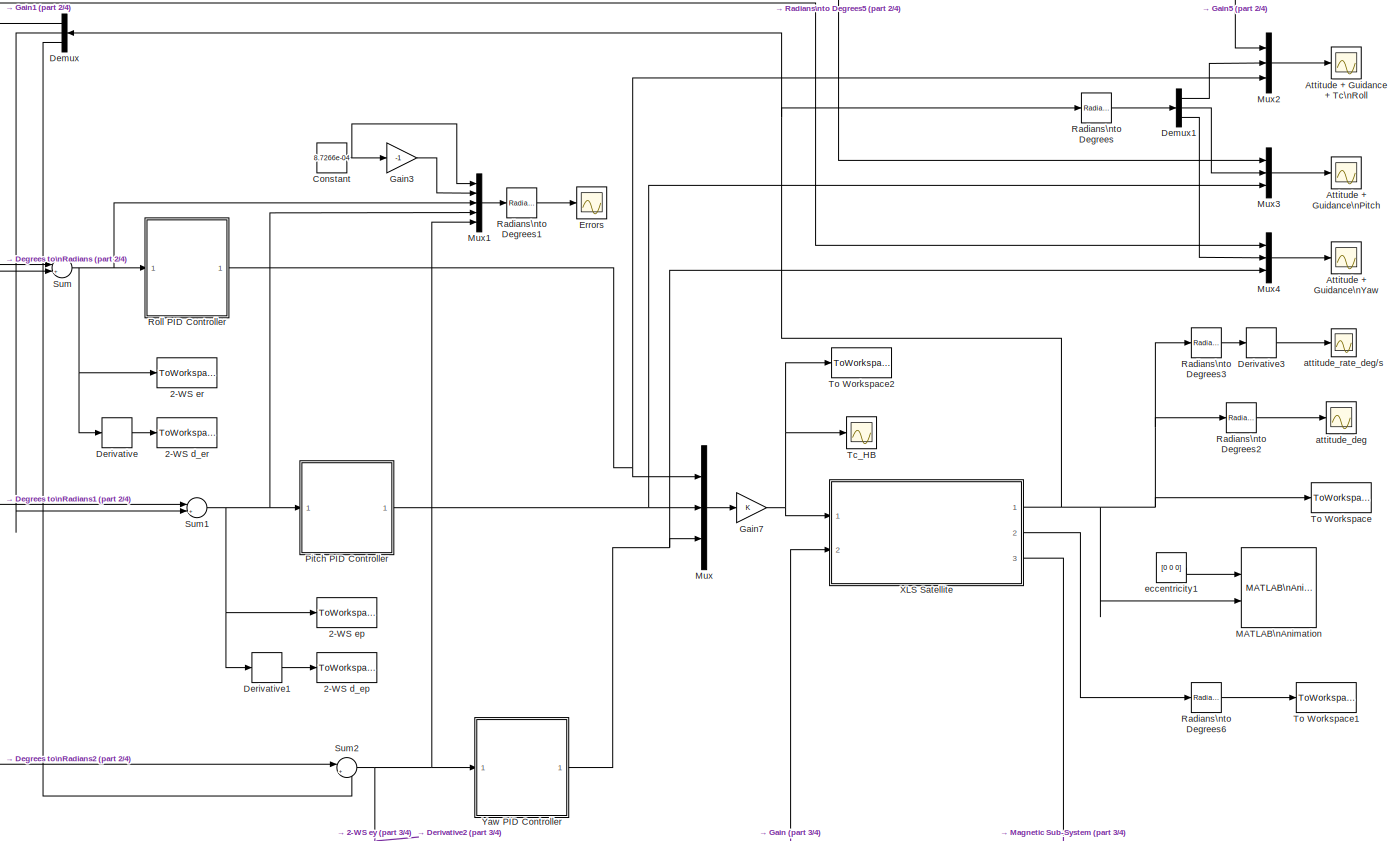
[diagram: root canvas - part 1/4, middle right region]
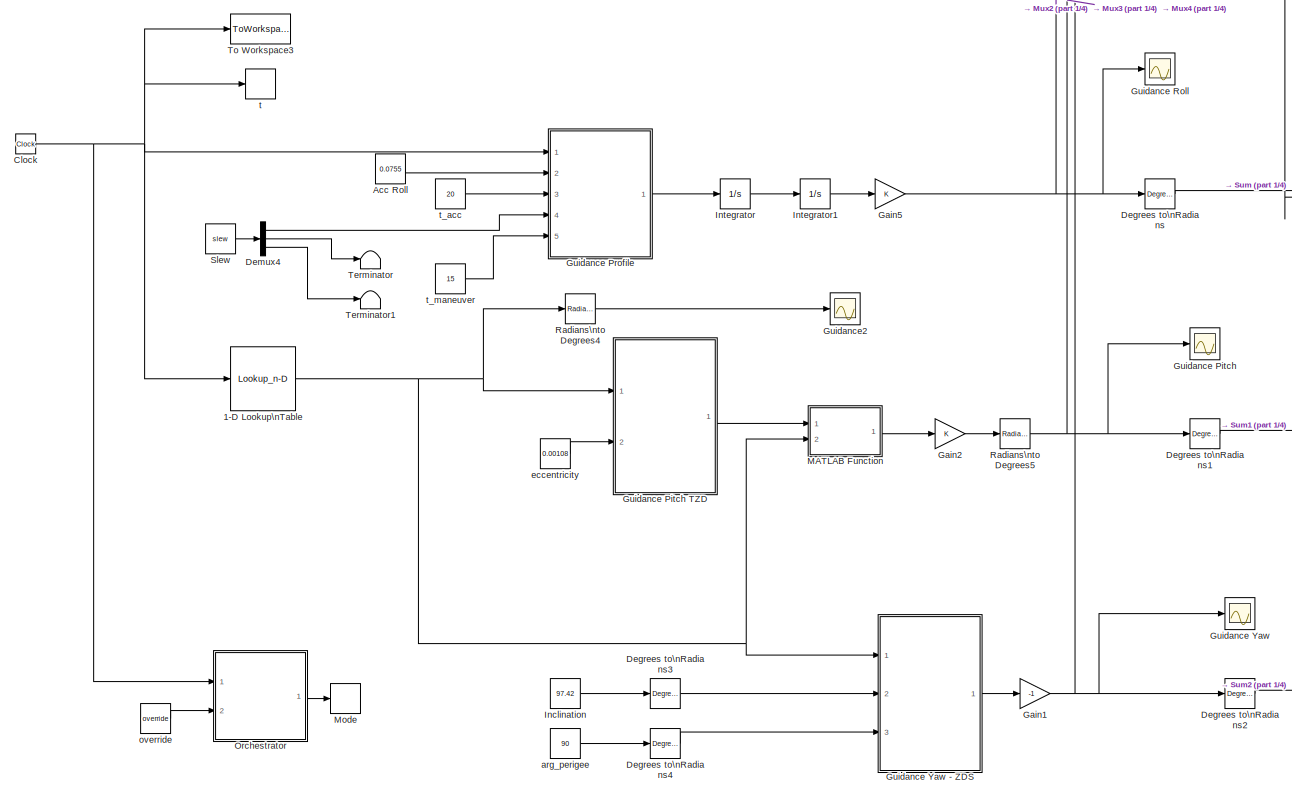
[diagram: root canvas - part 2/4, middle left region]
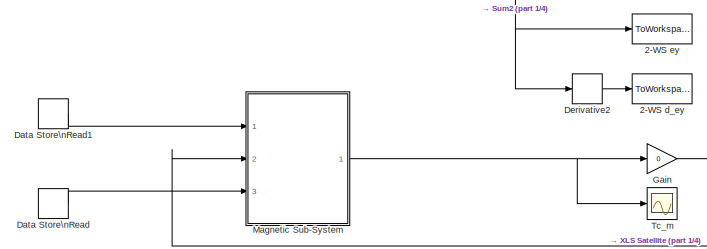
[diagram: root canvas - part 3/4, bottom center region]
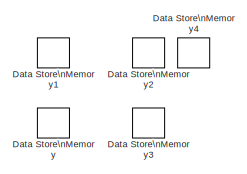
[diagram: root canvas - part 4/4, bottom left region]
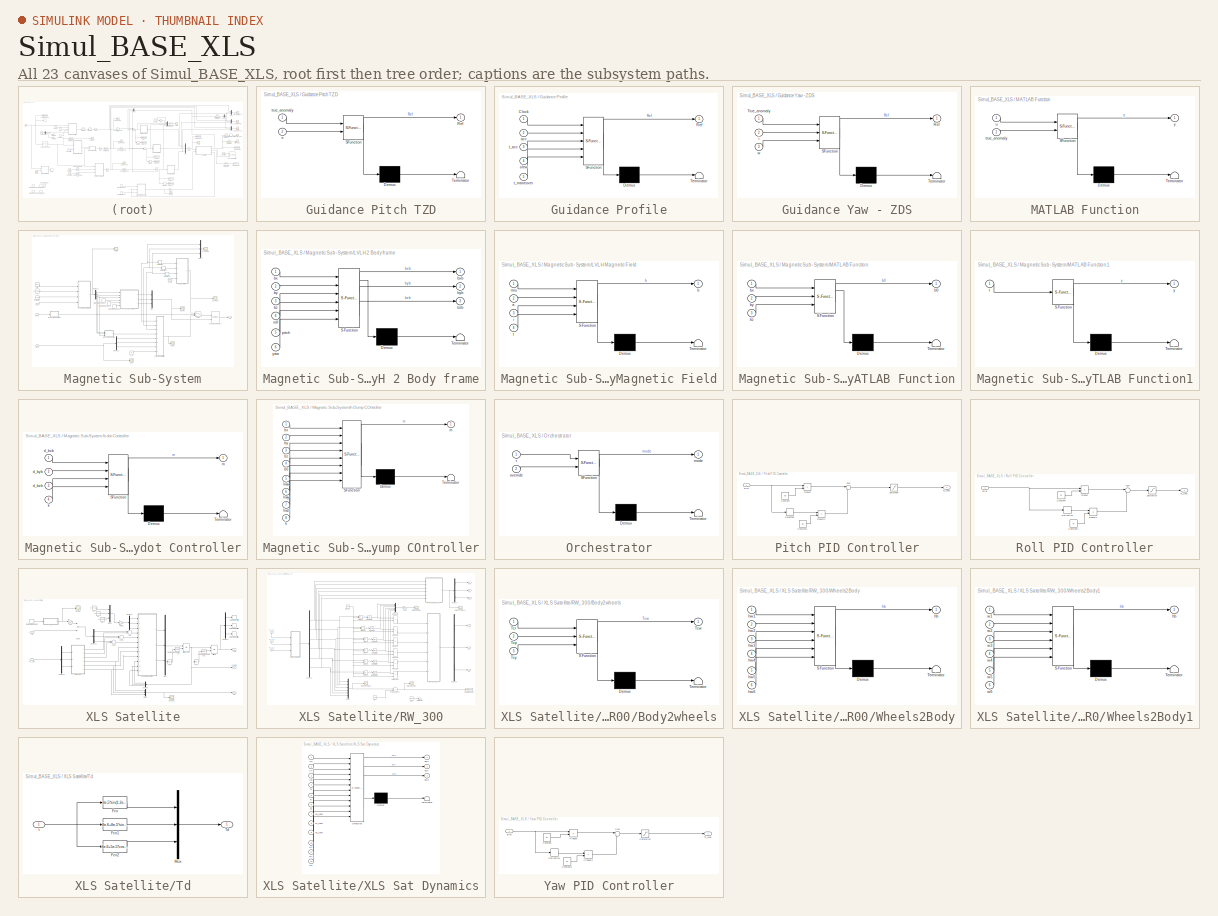
[diagram: thumbnail index - all 23 canvases of the model, root first then tree order]
MODEL Simul_BASE_XLS
KIND model
BLOCK [Lookup_n-D] 1-D Lookup\nTable
  BreakpointsForDimension1 = [0,5619.6]
  InternalRulePriority = Speed
  NumberOfTableDimensions = 1
  Ports = [1, 1]
  RndMeth = Simplest
  SID = 988
  Table = [0,2*pi()]
BLOCK [ToWorkspace] 2-WS d_ep
  MaxDataPoints = inf
  Ports = [1]
  SID = 271
  SampleTime = -1
  VariableName = d_ep
BLOCK [ToWorkspace] 2-WS d_er
  MaxDataPoints = inf
  Ports = [1]
  SID = 270
  SampleTime = -1
  VariableName = d_er
BLOCK [ToWorkspace] 2-WS d_ey
  MaxDataPoints = inf
  Ports = [1]
  SID = 272
  SampleTime = -1
  VariableName = d_ey
BLOCK [ToWorkspace] 2-WS ep
  MaxDataPoints = inf
  Ports = [1]
  SID = 274
  SampleTime = -1
  VariableName = ep
BLOCK [ToWorkspace] 2-WS er
  MaxDataPoints = inf
  Ports = [1]
  SID = 273
  SampleTime = -1
  VariableName = er
BLOCK [ToWorkspace] 2-WS ey
  MaxDataPoints = inf
  Ports = [1]
  SID = 276
  SampleTime = -1
  VariableName = ey
BLOCK [Constant] Acc Roll
  SID = 739
  Value = 0.0755
BLOCK [Scope] Attitude + Guidance + Tc\nRoll
  NumInputPorts = 1
  Ports = [1]
  SID = 426
  ScopeSpecificationString = Simulink.scopes.TimeScopeBlockCfg('CurrentConfiguration', extmgr.ConfigurationSet(extmgr.Configuration('Core','General UI',true),extmgr.Configuration('Core','Source UI',true),extmgr.Configuration('Sources','WiredSimulink',true,'DataLoggingVariableName','ScopeData1','DataLoggingSaveFormat','StructureWithTime','DataLoggingDecimation','1','DataLoggingDecimateData',true),extmgr.Configuration('Visuals'...<+1726ch>
BLOCK [Scope] Attitude + Guidance\nPitch
  NumInputPorts = 1
  Ports = [1]
  SID = 481
  ScopeSpecificationString = Simulink.scopes.TimeScopeBlockCfg('CurrentConfiguration', extmgr.ConfigurationSet(extmgr.Configuration('Core','General UI',true),extmgr.Configuration('Core','Source UI',true),extmgr.Configuration('Sources','WiredSimulink',true,'DataLoggingVariableName','ScopeData1','DataLoggingSaveFormat','StructureWithTime','DataLoggingDecimation','1','DataLoggingDecimateData',true),extmgr.Configuration('Visuals'...<+1733ch>
BLOCK [Scope] Attitude + Guidance\nYaw
  NumInputPorts = 1
  Ports = [1]
  SID = 483
  ScopeSpecificationString = Simulink.scopes.TimeScopeBlockCfg('CurrentConfiguration', extmgr.ConfigurationSet(extmgr.Configuration('Core','General UI',true),extmgr.Configuration('Core','Source UI',true),extmgr.Configuration('Sources','WiredSimulink',true,'DataLoggingVariableName','ScopeData2','DataLoggingSaveFormat','StructureWithTime','DataLoggingDecimation','1','DataLoggingDecimateData',true),extmgr.Configuration('Visuals'...<+1720ch>
BLOCK [Clock] Clock
  SID = 422
BLOCK [Constant] Constant
  SID = 532
  Value = 8.7266e-04
BLOCK [DataStoreMemory] Data Store\nMemory
  DataStoreName = time
  ReadBeforeWriteMsg = warning
  SID = 882
  ShowAdditionalParam = off
  WriteAfterReadMsg = warning
  WriteAfterWriteMsg = warning
BLOCK [DataStoreMemory] Data Store\nMemory1
  DataStoreName = mode
  ReadBeforeWriteMsg = warning
  SID = 883
  ShowAdditionalParam = off
  WriteAfterReadMsg = warning
  WriteAfterWriteMsg = warning
BLOCK [DataStoreMemory] Data Store\nMemory2
  DataStoreName = roll
  ReadBeforeWriteMsg = warning
  SID = 886
  ShowAdditionalParam = off
  WriteAfterReadMsg = warning
  WriteAfterWriteMsg = warning
BLOCK [DataStoreMemory] Data Store\nMemory3
  DataStoreName = pitch
  ReadBeforeWriteMsg = warning
  SID = 887
  ShowAdditionalParam = off
  WriteAfterReadMsg = warning
  WriteAfterWriteMsg = warning
BLOCK [DataStoreMemory] Data Store\nMemory4
  DataStoreName = yaw
  ReadBeforeWriteMsg = warning
  SID = 888
  ShowAdditionalParam = off
  WriteAfterReadMsg = warning
  WriteAfterWriteMsg = warning
BLOCK [DataStoreRead] Data Store\nRead
  DataStoreName = mode
  Ports = [0, 1]
  SID = 885
BLOCK [DataStoreRead] Data Store\nRead1
  DataStoreElements = time
  DataStoreName = time
  Ports = [0, 1]
  SID = 875
BLOCK [Reference] Degrees to\nRadians  REF=simulink_extras/Transformations/Degrees to\nRadians
  Ports = [1, 1]
  SID = 325
  SourceBlock = simulink_extras/Transformations/Degrees to\nRadians
  SourceProductBaseCode = SL
  SourceProductName = Simulink
  SourceType = DegreesToRadians
BLOCK [Reference] Degrees to\nRadians1  REF=simulink_extras/Transformations/Degrees to\nRadians
  Ports = [1, 1]
  SID = 416
  SourceBlock = simulink_extras/Transformations/Degrees to\nRadians
  SourceProductBaseCode = SL
  SourceProductName = Simulink
  SourceType = DegreesToRadians
BLOCK [Reference] Degrees to\nRadians2  REF=simulink_extras/Transformations/Degrees to\nRadians
  Ports = [1, 1]
  SID = 417
  SourceBlock = simulink_extras/Transformations/Degrees to\nRadians
  SourceProductBaseCode = SL
  SourceProductName = Simulink
  SourceType = DegreesToRadians
BLOCK [Reference] Degrees to\nRadians3  REF=simulink_extras/Transformations/Degrees to\nRadians
  Ports = [1, 1]
  SID = 986
  SourceBlock = simulink_extras/Transformations/Degrees to\nRadians
  SourceProductBaseCode = SL
  SourceProductName = Simulink
  SourceType = DegreesToRadians
BLOCK [Reference] Degrees to\nRadians4  REF=simulink_extras/Transformations/Degrees to\nRadians
  Ports = [1, 1]
  SID = 987
  SourceBlock = simulink_extras/Transformations/Degrees to\nRadians
  SourceProductBaseCode = SL
  SourceProductName = Simulink
  SourceType = DegreesToRadians
BLOCK [Demux] Demux
  DisplayOption = bar
  Outputs = 3
  Ports = [1, 3]
  SID = 216
BLOCK [Demux] Demux1
  DisplayOption = bar
  Outputs = 3
  Ports = [1, 3]
  SID = 480
BLOCK [Demux] Demux4
  DisplayOption = bar
  Outputs = 3
  Ports = [1, 3]
  SID = 750
BLOCK [Derivative] Derivative
  SID = 267
BLOCK [Derivative] Derivative1
  SID = 268
BLOCK [Derivative] Derivative2
  SID = 269
BLOCK [Derivative] Derivative3
  SID = 855
BLOCK [Scope] Errors
  NumInputPorts = 1
  Ports = [1]
  SID = 168
  ScopeSpecificationString = Simulink.scopes.TimeScopeBlockCfg('CurrentConfiguration', extmgr.ConfigurationSet(extmgr.Configuration('Core','General UI',true),extmgr.Configuration('Core','Source UI',true),extmgr.Configuration('Sources','WiredSimulink',true,'DataLoggingVariableName','ScopeData4','DataLoggingSaveFormat','StructureWithTime','DataLoggingDecimation','1','DataLoggingDecimateData',true),extmgr.Configuration('Visuals'...<+1800ch>
BLOCK [Gain] Gain
  Gain = 0
  OutDataTypeStr = Inherit: Inherit via internal rule
  ParamDataTypeStr = Inherit: Inherit via internal rule
  SID = 817
  SaturateOnIntegerOverflow = off
BLOCK [Gain] Gain1
  Gain = -1
  OutDataTypeStr = Inherit: Inherit via internal rule
  ParamDataTypeStr = Inherit: Inherit via internal rule
  SID = 759
  SaturateOnIntegerOverflow = off
BLOCK [Gain] Gain2
  OutDataTypeStr = Inherit: Inherit via internal rule
  ParamDataTypeStr = Inherit: Inherit via internal rule
  SID = 763
  SaturateOnIntegerOverflow = off
BLOCK [Gain] Gain3
  Gain = -1
  OutDataTypeStr = Inherit: Inherit via internal rule
  ParamDataTypeStr = Inherit: Inherit via internal rule
  SID = 533
  SaturateOnIntegerOverflow = off
BLOCK [Gain] Gain5
  OutDataTypeStr = Inherit: Inherit via internal rule
  ParamDataTypeStr = Inherit: Inherit via internal rule
  SID = 772
  SaturateOnIntegerOverflow = off
BLOCK [Gain] Gain7
  OutDataTypeStr = Inherit: Inherit via internal rule
  ParamDataTypeStr = Inherit: Inherit via internal rule
  SID = 849
  SaturateOnIntegerOverflow = off
BLOCK [Scope] Guidance Pitch
  NumInputPorts = 1
  Ports = [1]
  SID = 478
  ScopeSpecificationString = Simulink.scopes.TimeScopeBlockCfg('CurrentConfiguration', extmgr.ConfigurationSet(extmgr.Configuration('Core','General UI',true),extmgr.Configuration('Core','Source UI',true),extmgr.Configuration('Sources','WiredSimulink',true,'DataLoggingVariableName','ScopeData1','DataLoggingSaveFormat','StructureWithTime','DataLoggingDecimation','1','DataLoggingDecimateData',true),extmgr.Configuration('Visuals'...<+1679ch>
BLOCK [SubSystem] Guidance Pitch TZD
  ErrorFcn = Stateflow.Translate.translate
  PermitHierarchicalResolution = ExplicitOnly
  Ports = [2, 1]
  RequestExecContextInheritance = off
  SFBlockType = MATLAB Function
  SID = 746
  TreatAsAtomicUnit = on
  Variant = off
BLOCK [Demux] Guidance Pitch TZD/ Demux 
  Outputs = 1
  Ports = [1, 1]
  SID = 746::26
BLOCK [S-Function] Guidance Pitch TZD/ SFunction 
  EnableBusSupport = on
  FunctionName = sf_sfun
  PortCounts = [2 2]
  Ports = [2, 2]
  SFcnIsStateOwnerBlock = off
  SFunctionDeploymentMode = off
  SID = 746::25
  Tag = Stateflow S-Function Simul_BASE_XLS 3
BLOCK [Terminator] Guidance Pitch TZD/ Terminator 
  SID = 746::27
BLOCK [Outport] Guidance Pitch TZD/Ref
  IconDisplay = Port number
  SID = 746::5
BLOCK [Inport] Guidance Pitch TZD/e
  IconDisplay = Port number
  Port = 2
  SID = 746::22
BLOCK [Inport] Guidance Pitch TZD/true_anomaly
  IconDisplay = Port number
  SID = 746::1
BLOCK [SubSystem] Guidance Profile
  ErrorFcn = Stateflow.Translate.translate
  PermitHierarchicalResolution = ExplicitOnly
  Ports = [5, 1]
  RequestExecContextInheritance = off
  SFBlockType = MATLAB Function
  SID = 440
  TreatAsAtomicUnit = on
  Variant = off
BLOCK [Demux] Guidance Profile/ Demux 
  Outputs = 1
  Ports = [1, 1]
  SID = 440::26
BLOCK [S-Function] Guidance Profile/ SFunction 
  EnableBusSupport = on
  FunctionName = sf_sfun
  PortCounts = [5 2]
  Ports = [5, 2]
  SFcnIsStateOwnerBlock = off
  SFunctionDeploymentMode = off
  SID = 440::25
  Tag = Stateflow S-Function Simul_BASE_XLS 2
BLOCK [Terminator] Guidance Profile/ Terminator 
  SID = 440::27
BLOCK [Inport] Guidance Profile/Clock
  IconDisplay = Port number
  SID = 440::1
BLOCK [Outport] Guidance Profile/Ref
  IconDisplay = Port number
  SID = 440::5
BLOCK [Inport] Guidance Profile/acc
  IconDisplay = Port number
  Port = 2
  SID = 440::22
BLOCK [Inport] Guidance Profile/slew
  IconDisplay = Port number
  Port = 4
  SID = 440::23
BLOCK [Inport] Guidance Profile/t_acc
  IconDisplay = Port number
  Port = 3
  SID = 440::24
BLOCK [Inport] Guidance Profile/t_maneuver
  IconDisplay = Port number
  Port = 5
  SID = 440::28
BLOCK [Scope] Guidance Roll
  NumInputPorts = 1
  Ports = [1]
  SID = 423
  ScopeSpecificationString = Simulink.scopes.TimeScopeBlockCfg('CurrentConfiguration', extmgr.ConfigurationSet(extmgr.Configuration('Core','General UI',true),extmgr.Configuration('Core','Source UI',true),extmgr.Configuration('Sources','WiredSimulink',true,'DataLoggingVariableName','ScopeData1','DataLoggingSaveFormat','StructureWithTime','DataLoggingLimitDataPoints',true,'DataLoggingDecimation','1','DataLoggingDecimateData',tr...<+1704ch>
BLOCK [Scope] Guidance Yaw
  NumInputPorts = 1
  Ports = [1]
  SID = 479
  ScopeSpecificationString = Simulink.scopes.TimeScopeBlockCfg('CurrentConfiguration', extmgr.ConfigurationSet(extmgr.Configuration('Core','General UI',true),extmgr.Configuration('Core','Source UI',true),extmgr.Configuration('Sources','WiredSimulink',true,'DataLoggingVariableName','ScopeData2','DataLoggingSaveFormat','StructureWithTime','DataLoggingDecimation','1','DataLoggingDecimateData',true),extmgr.Configuration('Visuals'...<+1685ch>
BLOCK [SubSystem] Guidance Yaw - ZDS
  ErrorFcn = Stateflow.Translate.translate
  PermitHierarchicalResolution = ExplicitOnly
  Ports = [3, 1]
  RequestExecContextInheritance = off
  SFBlockType = MATLAB Function
  SID = 748
  TreatAsAtomicUnit = on
  Variant = off
BLOCK [Demux] Guidance Yaw - ZDS/ Demux 
  Outputs = 1
  Ports = [1, 1]
  SID = 748::28
BLOCK [S-Function] Guidance Yaw - ZDS/ SFunction 
  EnableBusSupport = on
  FunctionName = sf_sfun
  PortCounts = [3 2]
  Ports = [3, 2]
  SFcnIsStateOwnerBlock = off
  SFunctionDeploymentMode = off
  SID = 748::27
  Tag = Stateflow S-Function Simul_BASE_XLS 4
BLOCK [Terminator] Guidance Yaw - ZDS/ Terminator 
  SID = 748::29
BLOCK [Outport] Guidance Yaw - ZDS/Ref
  IconDisplay = Port number
  SID = 748::5
BLOCK [Inport] Guidance Yaw - ZDS/True_anomaly
  IconDisplay = Port number
  SID = 748::1
BLOCK [Inport] Guidance Yaw - ZDS/i
  IconDisplay = Port number
  Port = 2
  SID = 748::22
BLOCK [Inport] Guidance Yaw - ZDS/w
  IconDisplay = Port number
  Port = 3
  SID = 748::24
BLOCK [Scope] Guidance2
  NumInputPorts = 1
  Ports = [1]
  SID = 979
  ScopeSpecificationString = Simulink.scopes.TimeScopeBlockCfg('CurrentConfiguration', extmgr.ConfigurationSet(extmgr.Configuration('Core','General UI',true),extmgr.Configuration('Core','Source UI',true),extmgr.Configuration('Sources','WiredSimulink',true,'DataLoggingVariableName','ScopeData2','DataLoggingSaveFormat','StructureWithTime','DataLoggingDecimation','1','DataLoggingDecimateData',true),extmgr.Configuration('Visuals'...<+1713ch>
BLOCK [Constant] Inclination
  SID = 749
  Value = 97.42
BLOCK [Integrator] Integrator
  Ports = [1, 1]
  SID = 441
BLOCK [Integrator] Integrator1
  Ports = [1, 1]
  SID = 442
BLOCK [SubSystem] MATLAB Function
  ErrorFcn = Stateflow.Translate.translate
  PermitHierarchicalResolution = ExplicitOnly
  Ports = [2, 1]
  RequestExecContextInheritance = off
  SFBlockType = MATLAB Function
  SID = 990
  TreatAsAtomicUnit = on
  Variant = off
BLOCK [Demux] MATLAB Function/ Demux 
  Outputs = 1
  Ports = [1, 1]
  SID = 990::20
BLOCK [S-Function] MATLAB Function/ SFunction 
  EnableBusSupport = on
  FunctionName = sf_sfun
  PortCounts = [2 2]
  Ports = [2, 2]
  SFcnIsStateOwnerBlock = off
  SFunctionDeploymentMode = off
  SID = 990::19
  Tag = Stateflow S-Function Simul_BASE_XLS 5
BLOCK [Terminator] MATLAB Function/ Terminator 
  SID = 990::21
BLOCK [Inport] MATLAB Function/true_anomaly
  IconDisplay = Port number
  Port = 2
  SID = 990::22
BLOCK [Inport] MATLAB Function/u
  IconDisplay = Port number
  SID = 990::1
BLOCK [Outport] MATLAB Function/y
  IconDisplay = Port number
  SID = 990::5
BLOCK [Reference] MATLAB\nAnimation  REF=aerolibanim/MATLAB\nAnimation
  BoundingBoxCoordinates = [-50,50,-50,50,-50,50]
  CameraOffset = [0,0,-150]
  CameraViewAngle = 3
  Commented = on
  FigurePosition = [0,2,806,1381]
  Geometries = 'XLS.mat'
  Ports = [2]
  SID = 997
  SampleTime = 0.1
  SourceBlock = aerolibanim/MATLAB\nAnimation
  SourceProductBaseCode = AE
  SourceProductName = Aerospace Blockset
  SourceType = AeroMATLABAnimation
  Tag = Matlab Animation 6 DOF
  Vehicles = 1
BLOCK [SubSystem] Magnetic Sub-System
  Ports = [3, 1]
  RequestExecContextInheritance = off
  SID = 809
  Variant = off
BLOCK [Reference] Magnetic Sub-System/3x3 Cross Product  REF=sharedutil/3x3 Cross Product
  Ports = [2, 1]
  SID = 845
  SourceBlock = sharedutil/3x3 Cross Product
  SourceProductBaseCode = AE
  SourceProductName = Aerospace Blockset
  SourceType = CrossProduct
BLOCK [DataStoreRead] Magnetic Sub-System/Data Store\nRead2
  DataStoreName = yaw
  Ports = [0, 1]
  SID = 889
BLOCK [DataStoreRead] Magnetic Sub-System/Data Store\nRead3
  DataStoreName = roll
  Ports = [0, 1]
  SID = 890
BLOCK [DataStoreRead] Magnetic Sub-System/Data Store\nRead4
  DataStoreName = pitch
  Ports = [0, 1]
  SID = 891
BLOCK [Demux] Magnetic Sub-System/Demux2
  DisplayOption = bar
  Outputs = 3
  Ports = [1, 3]
  SID = 721
BLOCK [Demux] Magnetic Sub-System/Demux3
  DisplayOption = bar
  Outputs = 3
  Ports = [1, 3]
  SID = 730
BLOCK [Derivative] Magnetic Sub-System/Derivative
  SID = 838
BLOCK [Derivative] Magnetic Sub-System/Derivative1
  SID = 839
BLOCK [Derivative] Magnetic Sub-System/Derivative2
  SID = 840
BLOCK [Constant] Magnetic Sub-System/K_m
  SID = 726
  Value = 10
BLOCK [Constant] Magnetic Sub-System/K_m1
  SID = 835
  Value = 1e8*[1 0 0 ; 0 2 0 ; 0 0 1]
BLOCK [SubSystem] Magnetic Sub-System/LVLH 2 Body frame
  ErrorFcn = Stateflow.Translate.translate
  PermitHierarchicalResolution = ExplicitOnly
  Ports = [6, 3]
  RequestExecContextInheritance = off
  SFBlockType = MATLAB Function
  SID = 722
  TreatAsAtomicUnit = on
  Variant = off
BLOCK [Demux] Magnetic Sub-System/LVLH 2 Body frame/ Demux 
  Outputs = 1
  Ports = [1, 1]
  SID = 722::30
BLOCK [S-Function] Magnetic Sub-System/LVLH 2 Body frame/ SFunction 
  EnableBusSupport = on
  FunctionName = sf_sfun
  PortCounts = [6 4]
  Ports = [6, 4]
  SFcnIsStateOwnerBlock = off
  SFunctionDeploymentMode = off
  SID = 722::29
  Tag = Stateflow S-Function Simul_BASE_XLS 10
BLOCK [Terminator] Magnetic Sub-System/LVLH 2 Body frame/ Terminator 
  SID = 722::31
BLOCK [Inport] Magnetic Sub-System/LVLH 2 Body frame/bx
  IconDisplay = Port number
  SID = 722::1
BLOCK [Outport] Magnetic Sub-System/LVLH 2 Body frame/bxb
  IconDisplay = Port number
  SID = 722::5
BLOCK [Inport] Magnetic Sub-System/LVLH 2 Body frame/by
  IconDisplay = Port number
  Port = 2
  SID = 722::22
BLOCK [Outport] Magnetic Sub-System/LVLH 2 Body frame/byb
  IconDisplay = Port number
  Port = 2
  SID = 722::27
BLOCK [Inport] Magnetic Sub-System/LVLH 2 Body frame/bz
  IconDisplay = Port number
  Port = 3
  SID = 722::23
BLOCK [Outport] Magnetic Sub-System/LVLH 2 Body frame/bzb
  IconDisplay = Port number
  Port = 3
  SID = 722::28
BLOCK [Inport] Magnetic Sub-System/LVLH 2 Body frame/pitch
  IconDisplay = Port number
  Port = 5
  SID = 722::25
BLOCK [Inport] Magnetic Sub-System/LVLH 2 Body frame/roll
  IconDisplay = Port number
  Port = 4
  SID = 722::24
BLOCK [Inport] Magnetic Sub-System/LVLH 2 Body frame/yaw
  IconDisplay = Port number
  Port = 6
  SID = 722::26
BLOCK [SubSystem] Magnetic Sub-System/LVLH Magnetic Field
  ErrorFcn = Stateflow.Translate.translate
  PermitHierarchicalResolution = ExplicitOnly
  Ports = [4, 1]
  RequestExecContextInheritance = off
  SFBlockType = MATLAB Function
  SID = 793
  TreatAsAtomicUnit = on
  Variant = off
BLOCK [Demux] Magnetic Sub-System/LVLH Magnetic Field/ Demux 
  Outputs = 1
  Ports = [1, 1]
  SID = 793::26
BLOCK [S-Function] Magnetic Sub-System/LVLH Magnetic Field/ SFunction 
  EnableBusSupport = on
  FunctionName = sf_sfun
  PortCounts = [4 2]
  Ports = [4, 2]
  SFcnIsStateOwnerBlock = off
  SFunctionDeploymentMode = off
  SID = 793::25
  Tag = Stateflow S-Function Simul_BASE_XLS 14
BLOCK [Terminator] Magnetic Sub-System/LVLH Magnetic Field/ Terminator 
  SID = 793::27
BLOCK [Inport] Magnetic Sub-System/LVLH Magnetic Field/a
  IconDisplay = Port number
  Port = 2
  SID = 793::24
BLOCK [Outport] Magnetic Sub-System/LVLH Magnetic Field/b
  IconDisplay = Port number
  SID = 793::5
BLOCK [Inport] Magnetic Sub-System/LVLH Magnetic Field/i
  IconDisplay = Port number
  Port = 3
  SID = 793::1
BLOCK [Inport] Magnetic Sub-System/LVLH Magnetic Field/miu
  IconDisplay = Port number
  SID = 793::22
BLOCK [Inport] Magnetic Sub-System/LVLH Magnetic Field/t
  IconDisplay = Port number
  Port = 4
  SID = 793::23
BLOCK [SubSystem] Magnetic Sub-System/MATLAB Function
  ErrorFcn = Stateflow.Translate.translate
  PermitHierarchicalResolution = ExplicitOnly
  Ports = [3, 1]
  RequestExecContextInheritance = off
  SFBlockType = MATLAB Function
  SID = 908
  TreatAsAtomicUnit = on
  Variant = off
BLOCK [Demux] Magnetic Sub-System/MATLAB Function/ Demux 
  Outputs = 1
  Ports = [1, 1]
  SID = 908::25
BLOCK [S-Function] Magnetic Sub-System/MATLAB Function/ SFunction 
  EnableBusSupport = on
  FunctionName = sf_sfun
  PortCounts = [3 2]
  Ports = [3, 2]
  SFcnIsStateOwnerBlock = off
  SFunctionDeploymentMode = off
  SID = 908::24
  Tag = Stateflow S-Function Simul_BASE_XLS 18
BLOCK [Terminator] Magnetic Sub-System/MATLAB Function/ Terminator 
  SID = 908::26
BLOCK [Outport] Magnetic Sub-System/MATLAB Function/b0
  IconDisplay = Port number
  SID = 908::5
BLOCK [Inport] Magnetic Sub-System/MATLAB Function/bx
  IconDisplay = Port number
  SID = 908::1
BLOCK [Inport] Magnetic Sub-System/MATLAB Function/by
  IconDisplay = Port number
  Port = 2
  SID = 908::22
BLOCK [Inport] Magnetic Sub-System/MATLAB Function/bz
  IconDisplay = Port number
  Port = 3
  SID = 908::23
BLOCK [SubSystem] Magnetic Sub-System/MATLAB Function1
  ErrorFcn = Stateflow.Translate.translate
  PermitHierarchicalResolution = ExplicitOnly
  Ports = [1, 1]
  RequestExecContextInheritance = off
  SFBlockType = MATLAB Function
  SID = 857
  TreatAsAtomicUnit = on
  Variant = off
BLOCK [Demux] Magnetic Sub-System/MATLAB Function1/ Demux 
  Outputs = 1
  Ports = [1, 1]
  SID = 857::23
BLOCK [S-Function] Magnetic Sub-System/MATLAB Function1/ SFunction 
  EnableBusSupport = on
  FunctionName = sf_sfun
  PortCounts = [1 2]
  Ports = [1, 2]
  SFcnIsStateOwnerBlock = off
  SFunctionDeploymentMode = off
  SID = 857::22
  Tag = Stateflow S-Function Simul_BASE_XLS 17
BLOCK [Terminator] Magnetic Sub-System/MATLAB Function1/ Terminator 
  SID = 857::24
BLOCK [Inport] Magnetic Sub-System/MATLAB Function1/t
  IconDisplay = Port number
  SID = 857::1
BLOCK [Outport] Magnetic Sub-System/MATLAB Function1/y
  IconDisplay = Port number
  SID = 857::5
BLOCK [Inport] Magnetic Sub-System/Mode
  IconDisplay = Port number
  Port = 3
  SID = 837
BLOCK [Mux] Magnetic Sub-System/Mux
  DisplayOption = bar
  Inputs = 3
  Ports = [3, 1]
  SID = 852
BLOCK [Mux] Magnetic Sub-System/Mux1
  DisplayOption = bar
  Inputs = 3
  Ports = [3, 1]
  SID = 906
BLOCK [Scope] Magnetic Sub-System/SSM
  NumInputPorts = 1
  Ports = [1]
  SID = 861
  ScopeSpecificationString = Simulink.scopes.TimeScopeBlockCfg('CurrentConfiguration', extmgr.ConfigurationSet(extmgr.Configuration('Core','General UI',true),extmgr.Configuration('Core','Source UI',true),extmgr.Configuration('Sources','WiredSimulink',true,'DataLoggingVariableName','ScopeData5'),extmgr.Configuration('Visuals','Time Domain',true,'SerializedDisplays',{struct('MinYLimReal','-126.03034','MaxYLimReal','136.22559','...<+1510ch>
BLOCK [Switch] Magnetic Sub-System/Switch
  Criteria = u2 > Threshold
  InputSameDT = off
  SID = 836
  SaturateOnIntegerOverflow = off
BLOCK [Outport] Magnetic Sub-System/Tm
  IconDisplay = Port number
  SID = 816
BLOCK [Constant] Magnetic Sub-System/a
  SID = 832
  Value = 6825.589e3
BLOCK [Scope] Magnetic Sub-System/b
  NumInputPorts = 1
  Ports = [1]
  SID = 791
  ScopeSpecificationString = Simulink.scopes.TimeScopeBlockCfg('CurrentConfiguration', extmgr.ConfigurationSet(extmgr.Configuration('Core','General UI',true),extmgr.Configuration('Core','Source UI',true),extmgr.Configuration('Sources','WiredSimulink',true,'DataLoggingVariableName','ScopeData2','DataLoggingSaveFormat','Array','DataLoggingDecimation','1','DataLoggingDecimateData',true),extmgr.Configuration('Visuals','Time Domai...<+1902ch>
BLOCK [Scope] Magnetic Sub-System/b body
  NumInputPorts = 1
  Ports = [1]
  SID = 854
  ScopeSpecificationString = Simulink.scopes.TimeScopeBlockCfg('CurrentConfiguration', extmgr.ConfigurationSet(extmgr.Configuration('Core','General UI',true),extmgr.Configuration('Core','Source UI',true),extmgr.Configuration('Sources','WiredSimulink',true,'DataLoggingVariableName','ScopeData3'),extmgr.Configuration('Visuals','Time Domain',true,'SerializedDisplays',{struct('MinYLimReal','-0.00006','MaxYLimReal','0.00006','YLab...<+1501ch>
BLOCK [SubSystem] Magnetic Sub-System/b dot Controller
  ErrorFcn = Stateflow.Translate.translate
  PermitHierarchicalResolution = ExplicitOnly
  Ports = [4, 1]
  RequestExecContextInheritance = off
  SFBlockType = MATLAB Function
  SID = 833
  TreatAsAtomicUnit = on
  Variant = off
BLOCK [Demux] Magnetic Sub-System/b dot Controller/ Demux 
  Outputs = 1
  Ports = [1, 1]
  SID = 833::32
BLOCK [S-Function] Magnetic Sub-System/b dot Controller/ SFunction 
  EnableBusSupport = on
  FunctionName = sf_sfun
  PortCounts = [4 2]
  Ports = [4, 2]
  SFcnIsStateOwnerBlock = off
  SFunctionDeploymentMode = off
  SID = 833::31
  Tag = Stateflow S-Function Simul_BASE_XLS 15
BLOCK [Terminator] Magnetic Sub-System/b dot Controller/ Terminator 
  SID = 833::33
BLOCK [Inport] Magnetic Sub-System/b dot Controller/d_bxb
  IconDisplay = Port number
  SID = 833::1
BLOCK [Inport] Magnetic Sub-System/b dot Controller/d_byb
  IconDisplay = Port number
  Port = 2
  SID = 833::26
BLOCK [Inport] Magnetic Sub-System/b dot Controller/d_bzb
  IconDisplay = Port number
  Port = 3
  SID = 833::27
BLOCK [Inport] Magnetic Sub-System/b dot Controller/k
  IconDisplay = Port number
  Port = 4
  SID = 833::25
BLOCK [Outport] Magnetic Sub-System/b dot Controller/m
  IconDisplay = Port number
  SID = 833::30
BLOCK [Scope] Magnetic Sub-System/b_dot_m
  NumInputPorts = 1
  Ports = [1]
  SID = 846
  ScopeSpecificationString = Simulink.scopes.TimeScopeBlockCfg('CurrentConfiguration', extmgr.ConfigurationSet(extmgr.Configuration('Core','General UI',true),extmgr.Configuration('Core','Source UI',true),extmgr.Configuration('Sources','WiredSimulink',true,'DataLoggingVariableName','ScopeData1'),extmgr.Configuration('Visuals','Time Domain',true,'SerializedDisplays',{struct('MinYLimReal','-24.30494','MaxYLimReal','22.64683','YL...<+1439ch>
BLOCK [Scope] Magnetic Sub-System/b_dot_m1
  NumInputPorts = 1
  Ports = [1]
  SID = 907
  ScopeSpecificationString = Simulink.scopes.TimeScopeBlockCfg('CurrentConfiguration', extmgr.ConfigurationSet(extmgr.Configuration('Core','General UI',true),extmgr.Configuration('Core','Source UI',true),extmgr.Configuration('Sources','WiredSimulink',true,'DataLoggingVariableName','ScopeData1'),extmgr.Configuration('Visuals','Time Domain',true,'SerializedDisplays',{struct('MinYLimReal','-0.00005','MaxYLimReal','0.00006','YLab...<+1502ch>
BLOCK [SubSystem] Magnetic Sub-System/h Dump COntroller
  ErrorFcn = Stateflow.Translate.translate
  PermitHierarchicalResolution = ExplicitOnly
  Ports = [8, 1]
  RequestExecContextInheritance = off
  SFBlockType = MATLAB Function
  SID = 724
  TreatAsAtomicUnit = on
  Variant = off
BLOCK [Demux] Magnetic Sub-System/h Dump COntroller/ Demux 
  Outputs = 1
  Ports = [1, 1]
  SID = 724::32
BLOCK [S-Function] Magnetic Sub-System/h Dump COntroller/ SFunction 
  EnableBusSupport = on
  FunctionName = sf_sfun
  PortCounts = [8 2]
  Ports = [8, 2]
  SFcnIsStateOwnerBlock = off
  SFunctionDeploymentMode = off
  SID = 724::31
  Tag = Stateflow S-Function Simul_BASE_XLS 11
BLOCK [Terminator] Magnetic Sub-System/h Dump COntroller/ Terminator 
  SID = 724::33
BLOCK [Inport] Magnetic Sub-System/h Dump COntroller/b0
  IconDisplay = Port number
  Port = 4
  SID = 724::22
BLOCK [Inport] Magnetic Sub-System/h Dump COntroller/bx
  IconDisplay = Port number
  SID = 724::1
BLOCK [Inport] Magnetic Sub-System/h Dump COntroller/by
  IconDisplay = Port number
  Port = 2
  SID = 724::26
BLOCK [Inport] Magnetic Sub-System/h Dump COntroller/bz
  IconDisplay = Port number
  Port = 3
  SID = 724::27
BLOCK [Inport] Magnetic Sub-System/h Dump COntroller/hwx
  IconDisplay = Port number
  Port = 5
  SID = 724::23
BLOCK [Inport] Magnetic Sub-System/h Dump COntroller/hwy
  IconDisplay = Port number
  Port = 6
  SID = 724::28
BLOCK [Inport] Magnetic Sub-System/h Dump COntroller/hwz
  IconDisplay = Port number
  Port = 7
  SID = 724::29
BLOCK [Inport] Magnetic Sub-System/h Dump COntroller/k
  IconDisplay = Port number
  Port = 8
  SID = 724::25
BLOCK [Outport] Magnetic Sub-System/h Dump COntroller/m
  IconDisplay = Port number
  SID = 724::30
BLOCK [Scope] Magnetic Sub-System/hw
  NumInputPorts = 1
  Ports = [1]
  SID = 735
  ScopeSpecificationString = Simulink.scopes.TimeScopeBlockCfg('CurrentConfiguration', extmgr.ConfigurationSet(extmgr.Configuration('Core','General UI',true),extmgr.Configuration('Core','Source UI',true),extmgr.Configuration('Sources','WiredSimulink',true,'DataLoggingVariableName','ScopeData2','DataLoggingSaveFormat','Array','DataLoggingDecimation','1','DataLoggingDecimateData',true),extmgr.Configuration('Visuals','Time Domai...<+1522ch>
BLOCK [Inport] Magnetic Sub-System/hw_w
  IconDisplay = Port number
  Port = 2
  SID = 813
BLOCK [Constant] Magnetic Sub-System/inclination
  SID = 795
  Value = 97.245
BLOCK [Constant] Magnetic Sub-System/miu
  SID = 794
  Value = 7.95e15
BLOCK [Inport] Magnetic Sub-System/t
  IconDisplay = Port number
  SID = 818
BLOCK [DataStoreWrite] Mode
  DataStoreName = mode
  Ports = [1]
  SID = 877
BLOCK [Mux] Mux
  DisplayOption = bar
  Inputs = 3
  Ports = [3, 1]
  SID = 324
BLOCK [Mux] Mux1
  DisplayOption = bar
  Inputs = 5
  Ports = [5, 1]
  SID = 167
BLOCK [Mux] Mux2
  DisplayOption = bar
  Inputs = 3
  Ports = [3, 1]
  SID = 427
BLOCK [Mux] Mux3
  DisplayOption = bar
  Inputs = 3
  Ports = [3, 1]
  SID = 482
BLOCK [Mux] Mux4
  DisplayOption = bar
  Inputs = 3
  Ports = [3, 1]
  SID = 484
BLOCK [SubSystem] Orchestrator
  ErrorFcn = Stateflow.Translate.translate
  PermitHierarchicalResolution = ExplicitOnly
  Ports = [2, 1]
  RequestExecContextInheritance = off
  SFBlockType = MATLAB Function
  SID = 879
  TreatAsAtomicUnit = on
  Variant = off
BLOCK [Demux] Orchestrator/ Demux 
  Outputs = 1
  Ports = [1, 1]
  SID = 879::24
BLOCK [S-Function] Orchestrator/ SFunction 
  EnableBusSupport = on
  FunctionName = sf_sfun
  PortCounts = [2 2]
  Ports = [2, 2]
  SFcnIsStateOwnerBlock = off
  SFunctionDeploymentMode = off
  SID = 879::23
  Tag = Stateflow S-Function Simul_BASE_XLS 19
BLOCK [Terminator] Orchestrator/ Terminator 
  SID = 879::25
BLOCK [Outport] Orchestrator/mode
  IconDisplay = Port number
  SID = 879::5
BLOCK [Inport] Orchestrator/override
  IconDisplay = Port number
  Port = 2
  SID = 879::22
BLOCK [Inport] Orchestrator/t
  IconDisplay = Port number
  SID = 879::1
BLOCK [SubSystem] Pitch PID Controller
  Ports = [1, 1]
  RequestExecContextInheritance = off
  SID = 499
  Variant = off
BLOCK [Constant] Pitch PID Controller/Constant
  SID = 501
  Value = pp
BLOCK [Constant] Pitch PID Controller/Constant1
  SID = 502
  Value = dp
BLOCK [Derivative] Pitch PID Controller/Derivative
  SID = 504
BLOCK [Product] Pitch PID Controller/Product
  InputSameDT = off
  OutDataTypeStr = Inherit: Inherit via internal rule
  Ports = [2, 1]
  RndMeth = Floor
  SID = 506
  SaturateOnIntegerOverflow = off
BLOCK [Product] Pitch PID Controller/Product2
  InputSameDT = off
  OutDataTypeStr = Inherit: Inherit via internal rule
  Ports = [2, 1]
  RndMeth = Floor
  SID = 508
  SaturateOnIntegerOverflow = off
BLOCK [Saturate] Pitch PID Controller/Saturation
  InputPortMap = u0
  LowerLimit = -1.2929
  Ports = [1, 1]
  SID = 526
  UpperLimit = 1.2929
BLOCK [Sum] Pitch PID Controller/Sum
  IconShape = round
  InputSameDT = off
  Inputs = |++
  OutDataTypeStr = Inherit: Inherit via internal rule
  Ports = [2, 1]
  SID = 509
  SaturateOnIntegerOverflow = off
BLOCK [Outport] Pitch PID Controller/Tc_1400
  IconDisplay = Port number
  SID = 511
BLOCK [Inport] Pitch PID Controller/error
  IconDisplay = Port number
  SID = 657
BLOCK [Reference] Radians\nto Degrees  REF=simulink_extras/Transformations/Radians\nto Degrees
  Ports = [1, 1]
  SID = 376
  SourceBlock = simulink_extras/Transformations/Radians\nto Degrees
  SourceProductBaseCode = SL
  SourceProductName = Simulink
  SourceType = RadiansToDegrees
BLOCK [Reference] Radians\nto Degrees1  REF=simulink_extras/Transformations/Radians\nto Degrees
  Ports = [1, 1]
  SID = 425
  SourceBlock = simulink_extras/Transformations/Radians\nto Degrees
  SourceProductBaseCode = SL
  SourceProductName = Simulink
  SourceType = RadiansToDegrees
BLOCK [Reference] Radians\nto Degrees2  REF=simulink_extras/Transformations/Radians\nto Degrees
  Ports = [1, 1]
  SID = 869
  SourceBlock = simulink_extras/Transformations/Radians\nto Degrees
  SourceProductBaseCode = SL
  SourceProductName = Simulink
  SourceType = RadiansToDegrees
BLOCK [Reference] Radians\nto Degrees3  REF=simulink_extras/Transformations/Radians\nto Degrees
  Ports = [1, 1]
  SID = 870
  SourceBlock = simulink_extras/Transformations/Radians\nto Degrees
  SourceProductBaseCode = SL
  SourceProductName = Simulink
  SourceType = RadiansToDegrees
BLOCK [Reference] Radians\nto Degrees4  REF=simulink_extras/Transformations/Radians\nto Degrees
  Ports = [1, 1]
  SID = 981
  SourceBlock = simulink_extras/Transformations/Radians\nto Degrees
  SourceProductBaseCode = SL
  SourceProductName = Simulink
  SourceType = RadiansToDegrees
BLOCK [Reference] Radians\nto Degrees5  REF=simulink_extras/Transformations/Radians\nto Degrees
  Ports = [1, 1]
  SID = 993
  SourceBlock = simulink_extras/Transformations/Radians\nto Degrees
  SourceProductBaseCode = SL
  SourceProductName = Simulink
  SourceType = RadiansToDegrees
BLOCK [Reference] Radians\nto Degrees6  REF=simulink_extras/Transformations/Radians\nto Degrees
  Ports = [1, 1]
  SID = 999
  SourceBlock = simulink_extras/Transformations/Radians\nto Degrees
  SourceProductBaseCode = SL
  SourceProductName = Simulink
  SourceType = RadiansToDegrees
BLOCK [SubSystem] Roll PID Controller
  Ports = [1, 1]
  RequestExecContextInheritance = off
  SID = 486
  Variant = off
BLOCK [Constant] Roll PID Controller/Constant
  SID = 495
  Value = pr
BLOCK [Constant] Roll PID Controller/Constant1
  SID = 496
  Value = dr
BLOCK [Derivative] Roll PID Controller/Derivative
  SID = 498
BLOCK [Product] Roll PID Controller/Product
  InputSameDT = off
  OutDataTypeStr = Inherit: Inherit via internal rule
  Ports = [2, 1]
  RndMeth = Floor
  SID = 489
  SaturateOnIntegerOverflow = off
BLOCK [Product] Roll PID Controller/Product2
  InputSameDT = off
  OutDataTypeStr = Inherit: Inherit via internal rule
  Ports = [2, 1]
  RndMeth = Floor
  SID = 491
  SaturateOnIntegerOverflow = off
BLOCK [Saturate] Roll PID Controller/Saturation
  InputPortMap = u0
  LowerLimit = -0.6929
  Ports = [1, 1]
  SID = 525
  UpperLimit = 0.6929
BLOCK [Sum] Roll PID Controller/Sum
  IconShape = round
  InputSameDT = off
  Inputs = |++
  OutDataTypeStr = Inherit: Inherit via internal rule
  Ports = [2, 1]
  SID = 493
  SaturateOnIntegerOverflow = off
BLOCK [Outport] Roll PID Controller/Tc_1400
  IconDisplay = Port number
  SID = 488
BLOCK [Inport] Roll PID Controller/error
  IconDisplay = Port number
  SID = 487
BLOCK [Constant] Slew
  SID = 742
  Value = slew
  VectorParams1D = off
BLOCK [Sum] Sum
  IconShape = round
  InputSameDT = off
  Inputs = |+-
  OutDataTypeStr = Inherit: Inherit via internal rule
  Ports = [2, 1]
  SID = 42
  SaturateOnIntegerOverflow = off
BLOCK [Sum] Sum1
  IconShape = round
  InputSameDT = off
  Inputs = |+-
  OutDataTypeStr = Inherit: Inherit via internal rule
  Ports = [2, 1]
  SID = 81
  SaturateOnIntegerOverflow = off
BLOCK [Sum] Sum2
  IconShape = round
  InputSameDT = off
  Inputs = |+-
  OutDataTypeStr = Inherit: Inherit via internal rule
  Ports = [2, 1]
  SID = 107
  SaturateOnIntegerOverflow = off
BLOCK [Scope] Tc_HB
  NumInputPorts = 1
  Ports = [1]
  SID = 429
  ScopeSpecificationString = Simulink.scopes.TimeScopeBlockCfg('CurrentConfiguration', extmgr.ConfigurationSet(extmgr.Configuration('Core','General UI',true),extmgr.Configuration('Core','Source UI',true),extmgr.Configuration('Sources','WiredSimulink',true,'DataLoggingVariableName','ScopeData1','DataLoggingSaveFormat','StructureWithTime','DataLoggingLimitDataPoints',true,'DataLoggingDecimation','1','DataLoggingDecimateData',tr...<+2079ch>
BLOCK [Scope] Tc_m
  NumInputPorts = 1
  Ports = [1]
  SID = 725
  ScopeSpecificationString = Simulink.scopes.TimeScopeBlockCfg('CurrentConfiguration', extmgr.ConfigurationSet(extmgr.Configuration('Core','General UI',true),extmgr.Configuration('Core','Source UI',true),extmgr.Configuration('Sources','WiredSimulink',true,'DataLoggingVariableName','ScopeData1','DataLoggingSaveFormat','StructureWithTime','DataLoggingDecimation','1','DataLoggingDecimateData',true),extmgr.Configuration('Visuals'...<+1754ch>
BLOCK [Terminator] Terminator
  SID = 982
BLOCK [Terminator] Terminator1
  SID = 985
BLOCK [ToWorkspace] To Workspace
  MaxDataPoints = inf
  Ports = [1]
  SID = 224
  SampleTime = -1
  VariableName = theta
BLOCK [ToWorkspace] To Workspace1
  MaxDataPoints = inf
  Ports = [1]
  SID = 245
  SampleTime = -1
  VariableName = dtheta
BLOCK [ToWorkspace] To Workspace2
  MaxDataPoints = inf
  Ports = [1]
  SID = 528
  SampleTime = -1
  VariableName = Tc
BLOCK [ToWorkspace] To Workspace3
  MaxDataPoints = inf
  Ports = [1]
  SID = 738
  SampleTime = -1
  VariableName = t
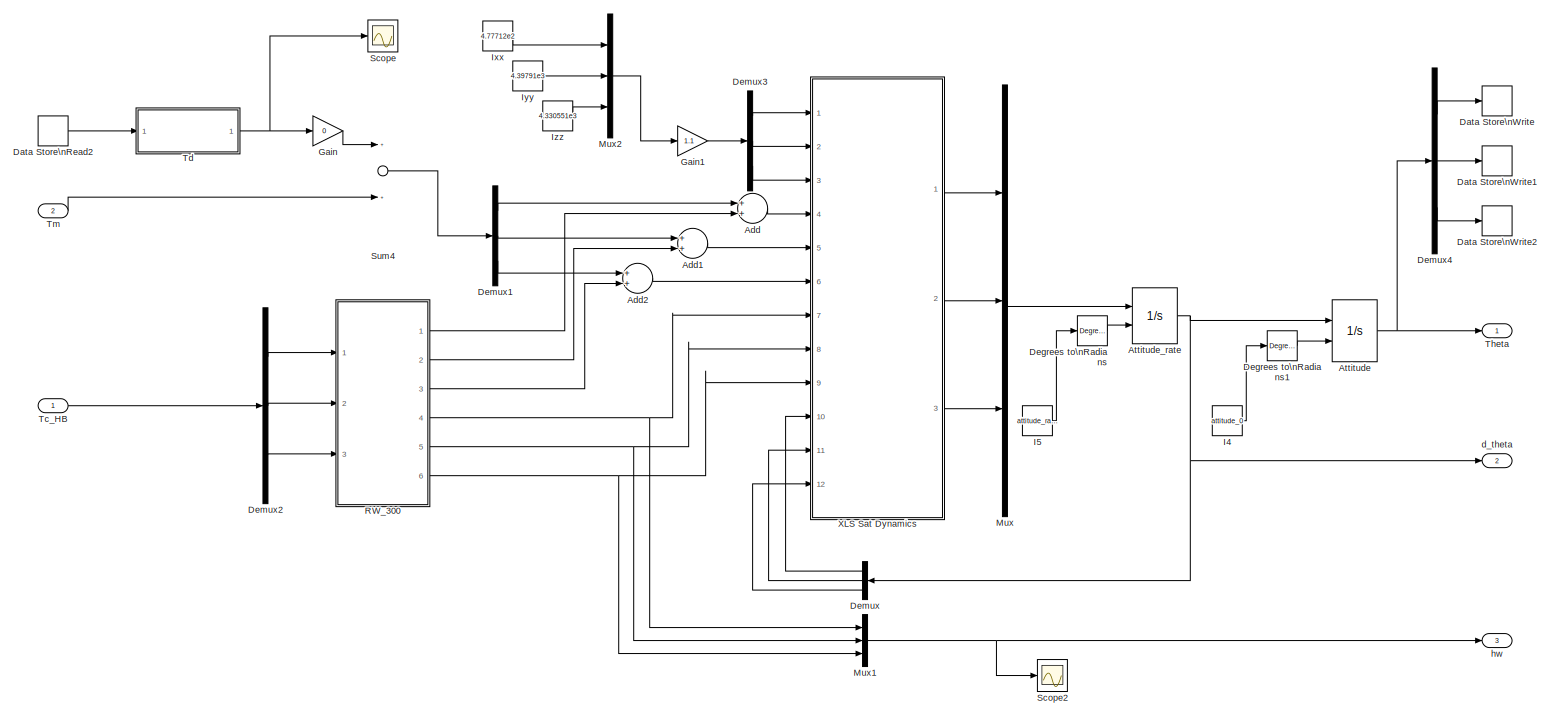
[diagram: XLS Satellite - part 1/1, most of the canvas]
BLOCK [SubSystem] XLS Satellite
  Ports = [2, 3]
  RequestExecContextInheritance = off
  SID = 443
  Variant = off
BLOCK [Sum] XLS Satellite/Add
  InputSameDT = off
  OutDataTypeStr = Inherit: Inherit via internal rule
  Ports = [2, 1]
  SID = 1014
  SaturateOnIntegerOverflow = off
BLOCK [Sum] XLS Satellite/Add1
  InputSameDT = off
  OutDataTypeStr = Inherit: Inherit via internal rule
  Ports = [2, 1]
  SID = 1015
  SaturateOnIntegerOverflow = off
BLOCK [Sum] XLS Satellite/Add2
  InputSameDT = off
  OutDataTypeStr = Inherit: Inherit via internal rule
  Ports = [2, 1]
  SID = 1016
  SaturateOnIntegerOverflow = off
BLOCK [Integrator] XLS Satellite/Attitude
  InitialConditionSource = external
  Ports = [2, 1]
  SID = 454
BLOCK [Integrator] XLS Satellite/Attitude_rate
  InitialConditionSource = external
  Ports = [2, 1]
  SID = 453
BLOCK [DataStoreRead] XLS Satellite/Data Store\nRead2
  DataStoreName = time
  Ports = [0, 1]
  SID = 1017
BLOCK [DataStoreWrite] XLS Satellite/Data Store\nWrite
  DataStoreName = roll
  Ports = [1]
  SID = 893
BLOCK [DataStoreWrite] XLS Satellite/Data Store\nWrite1
  DataStoreName = pitch
  Ports = [1]
  SID = 894
BLOCK [DataStoreWrite] XLS Satellite/Data Store\nWrite2
  DataStoreName = yaw
  Ports = [1]
  SID = 895
BLOCK [Reference] XLS Satellite/Degrees to\nRadians  REF=simulink_extras/Transformations/Degrees to\nRadians
  Ports = [1, 1]
  SID = 844
  SourceBlock = simulink_extras/Transformations/Degrees to\nRadians
  SourceProductBaseCode = SL
  SourceProductName = Simulink
  SourceType = DegreesToRadians
BLOCK [Reference] XLS Satellite/Degrees to\nRadians1  REF=simulink_extras/Transformations/Degrees to\nRadians
  Ports = [1, 1]
  SID = 851
  SourceBlock = simulink_extras/Transformations/Degrees to\nRadians
  SourceProductBaseCode = SL
  SourceProductName = Simulink
  SourceType = DegreesToRadians
BLOCK [Demux] XLS Satellite/Demux
  DisplayOption = bar
  Outputs = 3
  Ports = [1, 3]
  SID = 447
BLOCK [Demux] XLS Satellite/Demux1
  DisplayOption = bar
  Outputs = 3
  Ports = [1, 3]
  SID = 448
BLOCK [Demux] XLS Satellite/Demux2
  DisplayOption = bar
  Outputs = 3
  Ports = [1, 3]
  SID = 449
BLOCK [Demux] XLS Satellite/Demux3
  DisplayOption = bar
  Outputs = 3
  Ports = [1, 3]
  SID = 1020
BLOCK [Demux] XLS Satellite/Demux4
  DisplayOption = bar
  Outputs = 3
  Ports = [1, 3]
  SID = 892
BLOCK [Gain] XLS Satellite/Gain
  Gain = 0
  OutDataTypeStr = Inherit: Inherit via internal rule
  ParamDataTypeStr = Inherit: Inherit via internal rule
  SID = 462
  SaturateOnIntegerOverflow = off
BLOCK [Gain] XLS Satellite/Gain1
  Gain = 1.1
  OutDataTypeStr = Inherit: Inherit via internal rule
  ParamDataTypeStr = Inherit: Inherit via internal rule
  SID = 1022
  SaturateOnIntegerOverflow = off
BLOCK [Constant] XLS Satellite/I4
  SID = 740
  Value = attitude_0
BLOCK [Constant] XLS Satellite/I5
  SID = 843
  Value = attitude_rate_0
BLOCK [Constant] XLS Satellite/Ixx
  SID = 450
  Value = 4.77712e2
BLOCK [Constant] XLS Satellite/Iyy
  SID = 451
  Value = 4.39791e3
BLOCK [Constant] XLS Satellite/Izz
  SID = 452
  Value = 4.330551e3
BLOCK [Mux] XLS Satellite/Mux
  DisplayOption = bar
  Inputs = 3
  Ports = [3, 1]
  SID = 456
BLOCK [Mux] XLS Satellite/Mux1
  DisplayOption = bar
  Inputs = 3
  Ports = [3, 1]
  SID = 727
BLOCK [Mux] XLS Satellite/Mux2
  DisplayOption = bar
  Inputs = 3
  Ports = [3, 1]
  SID = 1021
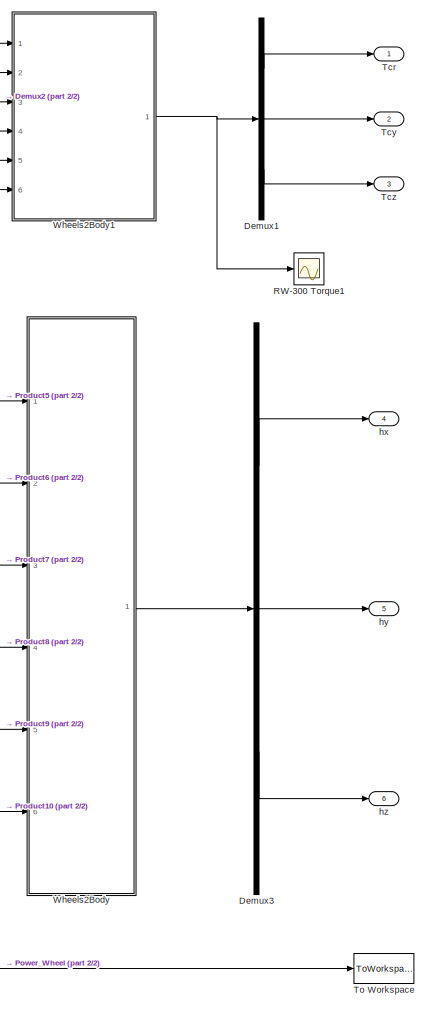
[diagram: XLS Satellite/RW_300 - part 1/2, right side, full height]
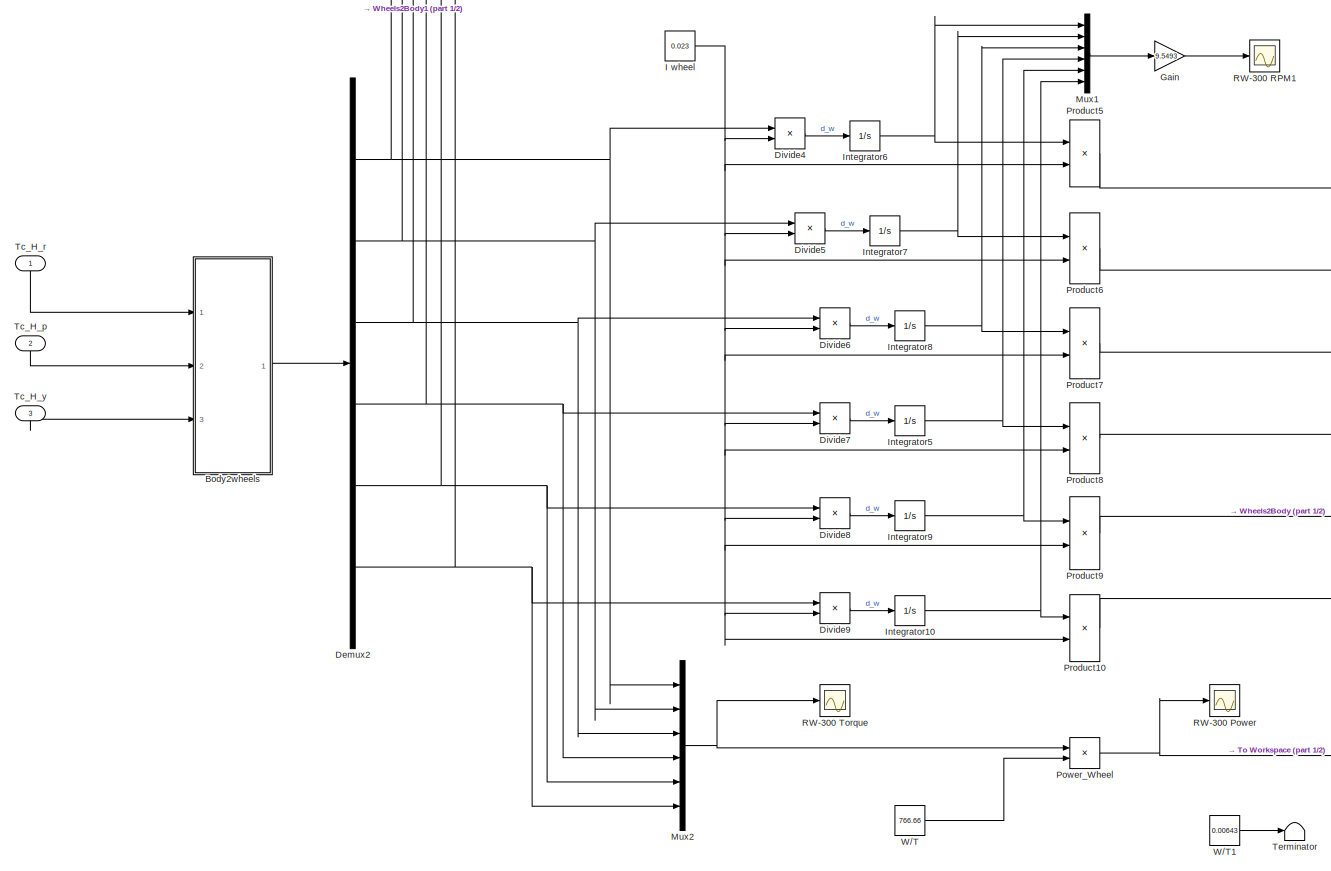
[diagram: XLS Satellite/RW_300 - part 2/2, most of the canvas]
BLOCK [SubSystem] XLS Satellite/RW_300
  Ports = [3, 6]
  RequestExecContextInheritance = off
  SID = 635
  Variant = off
BLOCK [SubSystem] XLS Satellite/RW_300/Body2wheels
  ErrorFcn = Stateflow.Translate.translate
  PermitHierarchicalResolution = ExplicitOnly
  Ports = [3, 1]
  RequestExecContextInheritance = off
  SFBlockType = MATLAB Function
  SID = 935
  TreatAsAtomicUnit = on
  Variant = off
BLOCK [Demux] XLS Satellite/RW_300/Body2wheels/ Demux 
  Outputs = 1
  Ports = [1, 1]
  SID = 935::26
BLOCK [S-Function] XLS Satellite/RW_300/Body2wheels/ SFunction 
  EnableBusSupport = on
  FunctionName = sf_sfun
  PortCounts = [3 2]
  Ports = [3, 2]
  SFcnIsStateOwnerBlock = off
  SFunctionDeploymentMode = off
  SID = 935::25
  Tag = Stateflow S-Function Simul_BASE_XLS 8
BLOCK [Terminator] XLS Satellite/RW_300/Body2wheels/ Terminator 
  SID = 935::27
BLOCK [Inport] XLS Satellite/RW_300/Body2wheels/Tcp
  IconDisplay = Port number
  Port = 2
  SID = 935::22
BLOCK [Inport] XLS Satellite/RW_300/Body2wheels/Tcr
  IconDisplay = Port number
  SID = 935::1
BLOCK [Outport] XLS Satellite/RW_300/Body2wheels/Tcw
  IconDisplay = Port number
  SID = 935::5
BLOCK [Inport] XLS Satellite/RW_300/Body2wheels/Tcy
  IconDisplay = Port number
  Port = 3
  SID = 935::23
BLOCK [Demux] XLS Satellite/RW_300/Demux1
  DisplayOption = bar
  Outputs = 3
  Ports = [1, 3]
  SID = 1009
BLOCK [Demux] XLS Satellite/RW_300/Demux2
  DisplayOption = bar
  Outputs = 6
  Ports = [1, 6]
  SID = 937
BLOCK [Demux] XLS Satellite/RW_300/Demux3
  DisplayOption = bar
  Outputs = 3
  Ports = [1, 3]
  SID = 938
BLOCK [Product] XLS Satellite/RW_300/Divide4
  InputSameDT = off
  Inputs = */
  OutDataTypeStr = Inherit: Inherit via internal rule
  Ports = [2, 1]
  RndMeth = Floor
  SID = 939
  SaturateOnIntegerOverflow = off
BLOCK [Product] XLS Satellite/RW_300/Divide5
  InputSameDT = off
  Inputs = */
  OutDataTypeStr = Inherit: Inherit via internal rule
  Ports = [2, 1]
  RndMeth = Floor
  SID = 940
  SaturateOnIntegerOverflow = off
BLOCK [Product] XLS Satellite/RW_300/Divide6
  InputSameDT = off
  Inputs = */
  OutDataTypeStr = Inherit: Inherit via internal rule
  Ports = [2, 1]
  RndMeth = Floor
  SID = 941
  SaturateOnIntegerOverflow = off
BLOCK [Product] XLS Satellite/RW_300/Divide7
  InputSameDT = off
  Inputs = */
  OutDataTypeStr = Inherit: Inherit via internal rule
  Ports = [2, 1]
  RndMeth = Floor
  SID = 942
  SaturateOnIntegerOverflow = off
BLOCK [Product] XLS Satellite/RW_300/Divide8
  InputSameDT = off
  Inputs = */
  OutDataTypeStr = Inherit: Inherit via internal rule
  Ports = [2, 1]
  RndMeth = Floor
  SID = 943
  SaturateOnIntegerOverflow = off
BLOCK [Product] XLS Satellite/RW_300/Divide9
  InputSameDT = off
  Inputs = */
  OutDataTypeStr = Inherit: Inherit via internal rule
  Ports = [2, 1]
  RndMeth = Floor
  SID = 944
  SaturateOnIntegerOverflow = off
BLOCK [Gain] XLS Satellite/RW_300/Gain
  Gain = 9.5493
  OutDataTypeStr = Inherit: Inherit via internal rule
  ParamDataTypeStr = Inherit: Inherit via internal rule
  SID = 945
  SaturateOnIntegerOverflow = off
BLOCK [Constant] XLS Satellite/RW_300/I wheel
  SID = 946
  Value = 0.023
BLOCK [Integrator] XLS Satellite/RW_300/Integrator10
  Ports = [1, 1]
  SID = 952
BLOCK [Integrator] XLS Satellite/RW_300/Integrator5
  Ports = [1, 1]
  SID = 947
BLOCK [Integrator] XLS Satellite/RW_300/Integrator6
  Ports = [1, 1]
  SID = 948
BLOCK [Integrator] XLS Satellite/RW_300/Integrator7
  Ports = [1, 1]
  SID = 949
BLOCK [Integrator] XLS Satellite/RW_300/Integrator8
  Ports = [1, 1]
  SID = 950
BLOCK [Integrator] XLS Satellite/RW_300/Integrator9
  Ports = [1, 1]
  SID = 951
BLOCK [Mux] XLS Satellite/RW_300/Mux1
  DisplayOption = bar
  Inputs = 6
  Ports = [6, 1]
  SID = 953
BLOCK [Mux] XLS Satellite/RW_300/Mux2
  DisplayOption = bar
  Inputs = 6
  Ports = [6, 1]
  SID = 954
BLOCK [Product] XLS Satellite/RW_300/Power_Wheel
  InputSameDT = off
  Inputs = **
  OutDataTypeStr = Inherit: Inherit via internal rule
  Ports = [2, 1]
  RndMeth = Floor
  SID = 955
  SaturateOnIntegerOverflow = off
BLOCK [Product] XLS Satellite/RW_300/Product10
  InputSameDT = off
  OutDataTypeStr = Inherit: Inherit via internal rule
  Ports = [2, 1]
  RndMeth = Floor
  SID = 961
  SaturateOnIntegerOverflow = off
BLOCK [Product] XLS Satellite/RW_300/Product5
  InputSameDT = off
  OutDataTypeStr = Inherit: Inherit via internal rule
  Ports = [2, 1]
  RndMeth = Floor
  SID = 956
  SaturateOnIntegerOverflow = off
BLOCK [Product] XLS Satellite/RW_300/Product6
  InputSameDT = off
  OutDataTypeStr = Inherit: Inherit via internal rule
  Ports = [2, 1]
  RndMeth = Floor
  SID = 957
  SaturateOnIntegerOverflow = off
BLOCK [Product] XLS Satellite/RW_300/Product7
  InputSameDT = off
  OutDataTypeStr = Inherit: Inherit via internal rule
  Ports = [2, 1]
  RndMeth = Floor
  SID = 958
  SaturateOnIntegerOverflow = off
BLOCK [Product] XLS Satellite/RW_300/Product8
  InputSameDT = off
  OutDataTypeStr = Inherit: Inherit via internal rule
  Ports = [2, 1]
  RndMeth = Floor
  SID = 959
  SaturateOnIntegerOverflow = off
BLOCK [Product] XLS Satellite/RW_300/Product9
  InputSameDT = off
  OutDataTypeStr = Inherit: Inherit via internal rule
  Ports = [2, 1]
  RndMeth = Floor
  SID = 960
  SaturateOnIntegerOverflow = off
BLOCK [Scope] XLS Satellite/RW_300/RW-300 Power
  NumInputPorts = 1
  Ports = [1]
  SID = 962
  ScopeSpecificationString = Simulink.scopes.TimeScopeBlockCfg('CurrentConfiguration', extmgr.ConfigurationSet(extmgr.Configuration('Core','General UI',true,'FigureColor',[0 0 0]),extmgr.Configuration('Core','Source UI',true),extmgr.Configuration('Sources','WiredSimulink',true,'DataLoggingVariableName','ScopeData1'),extmgr.Configuration('Visuals','Time Domain',true,'SerializedDisplays',{struct('MinYLimReal','-284.23741','MaxY...<+1562ch>
BLOCK [Scope] XLS Satellite/RW_300/RW-300 RPM1
  NumInputPorts = 1
  Ports = [1]
  SID = 964
  ScopeSpecificationString = Simulink.scopes.TimeScopeBlockCfg('CurrentConfiguration', extmgr.ConfigurationSet(extmgr.Configuration('Core','General UI',true),extmgr.Configuration('Core','Source UI',true),extmgr.Configuration('Sources','WiredSimulink',true,'DataLoggingVariableName','ScopeData3'),extmgr.Configuration('Visuals','Time Domain',true,'SerializedDisplays',{struct('MinYLimReal','-2850.70747','MaxYLimReal','2861.77224'...<+1505ch>
BLOCK [Scope] XLS Satellite/RW_300/RW-300 Torque
  NumInputPorts = 1
  Ports = [1]
  SID = 963
  ScopeSpecificationString = Simulink.scopes.TimeScopeBlockCfg('CurrentConfiguration', extmgr.ConfigurationSet(extmgr.Configuration('Core','General UI',true,'FigureColor',[0 0 0]),extmgr.Configuration('Core','Source UI',true),extmgr.Configuration('Sources','WiredSimulink',true,'DataLoggingVariableName','ScopeData2'),extmgr.Configuration('Visuals','Time Domain',true,'SerializedDisplays',{struct('MinYLimReal','-0.37075','MaxYLi...<+1518ch>
BLOCK [Scope] XLS Satellite/RW_300/RW-300 Torque1
  NumInputPorts = 1
  Ports = [1]
  SID = 1004
  ScopeSpecificationString = Simulink.scopes.TimeScopeBlockCfg('CurrentConfiguration', extmgr.ConfigurationSet(extmgr.Configuration('Core','General UI',true,'FigureColor',[0 0 0]),extmgr.Configuration('Core','Source UI',true),extmgr.Configuration('Sources','WiredSimulink',true,'DataLoggingVariableName','ScopeData1'),extmgr.Configuration('Visuals','Time Domain',true,'SerializedDisplays',{struct('MinYLimReal','-0.86617','MaxYLi...<+1504ch>
BLOCK [Inport] XLS Satellite/RW_300/Tc_H_p
  IconDisplay = Port number
  Port = 2
  SID = 933
BLOCK [Inport] XLS Satellite/RW_300/Tc_H_r
  IconDisplay = Port number
  SID = 932
BLOCK [Inport] XLS Satellite/RW_300/Tc_H_y
  IconDisplay = Port number
  Port = 3
  SID = 934
BLOCK [Outport] XLS Satellite/RW_300/Tcr
  IconDisplay = Port number
  SID = 970
BLOCK [Outport] XLS Satellite/RW_300/Tcy
  IconDisplay = Port number
  Port = 2
  SID = 971
BLOCK [Outport] XLS Satellite/RW_300/Tcz
  IconDisplay = Port number
  Port = 3
  SID = 972
BLOCK [Terminator] XLS Satellite/RW_300/Terminator
  SID = 965
BLOCK [ToWorkspace] XLS Satellite/RW_300/To Workspace
  FixptAsFi = on
  MaxDataPoints = inf
  Ports = [1]
  SID = 966
  SampleTime = -1
  Save2DSignal = 3-D array (concatenate along third dimension)
  VariableName = RW_w
BLOCK [Constant] XLS Satellite/RW_300/W//T
  SID = 967
  Value = 766.66
BLOCK [Constant] XLS Satellite/RW_300/W//T1
  SID = 968
  Value = 0.00643
BLOCK [SubSystem] XLS Satellite/RW_300/Wheels2Body
  ErrorFcn = Stateflow.Translate.translate
  PermitHierarchicalResolution = ExplicitOnly
  Ports = [6, 1]
  RequestExecContextInheritance = off
  SFBlockType = MATLAB Function
  SID = 969
  TreatAsAtomicUnit = on
  Variant = off
BLOCK [Demux] XLS Satellite/RW_300/Wheels2Body/ Demux 
  Outputs = 1
  Ports = [1, 1]
  SID = 969::28
BLOCK [S-Function] XLS Satellite/RW_300/Wheels2Body/ SFunction 
  EnableBusSupport = on
  FunctionName = sf_sfun
  PortCounts = [6 2]
  Ports = [6, 2]
  SFcnIsStateOwnerBlock = off
  SFunctionDeploymentMode = off
  SID = 969::27
  Tag = Stateflow S-Function Simul_BASE_XLS 9
BLOCK [Terminator] XLS Satellite/RW_300/Wheels2Body/ Terminator 
  SID = 969::29
BLOCK [Outport] XLS Satellite/RW_300/Wheels2Body/hb
  IconDisplay = Port number
  SID = 969::5
BLOCK [Inport] XLS Satellite/RW_300/Wheels2Body/hw1
  IconDisplay = Port number
  SID = 969::1
BLOCK [Inport] XLS Satellite/RW_300/Wheels2Body/hw2
  IconDisplay = Port number
  Port = 2
  SID = 969::22
BLOCK [Inport] XLS Satellite/RW_300/Wheels2Body/hw3
  IconDisplay = Port number
  Port = 3
  SID = 969::23
BLOCK [Inport] XLS Satellite/RW_300/Wheels2Body/hw4
  IconDisplay = Port number
  Port = 4
  SID = 969::24
BLOCK [Inport] XLS Satellite/RW_300/Wheels2Body/hw5
  IconDisplay = Port number
  Port = 5
  SID = 969::25
BLOCK [Inport] XLS Satellite/RW_300/Wheels2Body/hw6
  IconDisplay = Port number
  Port = 6
  SID = 969::26
BLOCK [SubSystem] XLS Satellite/RW_300/Wheels2Body1
  ErrorFcn = Stateflow.Translate.translate
  PermitHierarchicalResolution = ExplicitOnly
  Ports = [6, 1]
  RequestExecContextInheritance = off
  SFBlockType = MATLAB Function
  SID = 1003
  TreatAsAtomicUnit = on
  Variant = off
BLOCK [Demux] XLS Satellite/RW_300/Wheels2Body1/ Demux 
  Outputs = 1
  Ports = [1, 1]
  SID = 1003::28
BLOCK [S-Function] XLS Satellite/RW_300/Wheels2Body1/ SFunction 
  EnableBusSupport = on
  FunctionName = sf_sfun
  PortCounts = [6 2]
  Ports = [6, 2]
  SFcnIsStateOwnerBlock = off
  SFunctionDeploymentMode = off
  SID = 1003::27
  Tag = Stateflow S-Function Simul_BASE_XLS 6
BLOCK [Terminator] XLS Satellite/RW_300/Wheels2Body1/ Terminator 
  SID = 1003::29
BLOCK [Outport] XLS Satellite/RW_300/Wheels2Body1/hb
  IconDisplay = Port number
  SID = 1003::5
BLOCK [Inport] XLS Satellite/RW_300/Wheels2Body1/w1
  IconDisplay = Port number
  SID = 1003::1
BLOCK [Inport] XLS Satellite/RW_300/Wheels2Body1/w2
  IconDisplay = Port number
  Port = 2
  SID = 1003::22
BLOCK [Inport] XLS Satellite/RW_300/Wheels2Body1/w3
  IconDisplay = Port number
  Port = 3
  SID = 1003::23
BLOCK [Inport] XLS Satellite/RW_300/Wheels2Body1/w4
  IconDisplay = Port number
  Port = 4
  SID = 1003::24
BLOCK [Inport] XLS Satellite/RW_300/Wheels2Body1/w5
  IconDisplay = Port number
  Port = 5
  SID = 1003::25
BLOCK [Inport] XLS Satellite/RW_300/Wheels2Body1/w6
  IconDisplay = Port number
  Port = 6
  SID = 1003::26
BLOCK [Outport] XLS Satellite/RW_300/hx
  IconDisplay = Port number
  Port = 4
  SID = 1010
BLOCK [Outport] XLS Satellite/RW_300/hy
  IconDisplay = Port number
  Port = 5
  SID = 1011
BLOCK [Outport] XLS Satellite/RW_300/hz
  IconDisplay = Port number
  Port = 6
  SID = 1012
BLOCK [Scope] XLS Satellite/Scope
  NumInputPorts = 1
  Ports = [1]
  SID = 792
  ScopeSpecificationString = Simulink.scopes.TimeScopeBlockCfg('CurrentConfiguration', extmgr.ConfigurationSet(extmgr.Configuration('Core','General UI',true),extmgr.Configuration('Core','Source UI',true),extmgr.Configuration('Sources','WiredSimulink',true,'DataLoggingVariableName','ScopeData3'),extmgr.Configuration('Visuals','Time Domain',true,'SerializedDisplays',{struct('MinYLimReal','-0.000009','MaxYLimReal','0.00008','YLa...<+1437ch>
BLOCK [Scope] XLS Satellite/Scope2
  NumInputPorts = 1
  Ports = [1]
  SID = 804
  ScopeSpecificationString = Simulink.scopes.TimeScopeBlockCfg('CurrentConfiguration', extmgr.ConfigurationSet(extmgr.Configuration('Core','General UI',true),extmgr.Configuration('Core','Source UI',true),extmgr.Configuration('Sources','WiredSimulink',true,'DataLoggingVariableName','ScopeData1'),extmgr.Configuration('Visuals','Time Domain',true,'SerializedDisplays',{struct('MinYLimReal','-1.73661','MaxYLimReal','14.3189','YLab...<+1420ch>
BLOCK [Sum] XLS Satellite/Sum4
  InputSameDT = off
  OutDataTypeStr = Inherit: Inherit via internal rule
  Ports = [2, 1]
  SID = 866
  SaturateOnIntegerOverflow = off
BLOCK [Inport] XLS Satellite/Tc_HB
  IconDisplay = Port number
  SID = 444
BLOCK [SubSystem] XLS Satellite/Td
  Ports = [1, 1]
  RequestExecContextInheritance = off
  SID = 457
  Variant = off
BLOCK [Fcn] XLS Satellite/Td/Fcn
  Expr = 8e-5*sin(1.2e-3*u)
  SID = 459
BLOCK [Fcn] XLS Satellite/Td/Fcn1
  Expr = 8e-6+8e-5*sin(1.2e-3*u)+5e-5*cos(1.2e-3*u)
  SID = 460
BLOCK [Fcn] XLS Satellite/Td/Fcn2
  Expr = 8e-6+5e-5*cos(1.2e-3*u)
  SID = 461
BLOCK [Mux] XLS Satellite/Td/Mux
  DisplayOption = bar
  Inputs = 3
  Ports = [3, 1]
  SID = 463
BLOCK [Outport] XLS Satellite/Td/Td
  IconDisplay = Port number
  SID = 464
BLOCK [Inport] XLS Satellite/Td/t
  IconDisplay = Port number
  SID = 458
BLOCK [Outport] XLS Satellite/Theta
  IconDisplay = Port number
  SID = 468
BLOCK [Inport] XLS Satellite/Tm
  IconDisplay = Port number
  Port = 2
  SID = 688
BLOCK [SubSystem] XLS Satellite/XLS Sat Dynamics
  ErrorFcn = Stateflow.Translate.translate
  PermitHierarchicalResolution = ExplicitOnly
  Ports = [12, 3]
  RequestExecContextInheritance = off
  SFBlockType = MATLAB Function
  SID = 455
  TreatAsAtomicUnit = on
  Variant = off
BLOCK [Demux] XLS Satellite/XLS Sat Dynamics/ Demux 
  Outputs = 1
  Ports = [1, 1]
  SID = 455::42
BLOCK [S-Function] XLS Satellite/XLS Sat Dynamics/ SFunction 
  EnableBusSupport = on
  FunctionName = sf_sfun
  PortCounts = [12 4]
  Ports = [12, 4]
  SFcnIsStateOwnerBlock = off
  SFunctionDeploymentMode = off
  SID = 455::41
  Tag = Stateflow S-Function Simul_BASE_XLS 1
BLOCK [Terminator] XLS Satellite/XLS Sat Dynamics/ Terminator 
  SID = 455::43
BLOCK [Inport] XLS Satellite/XLS Sat Dynamics/Ixx
  IconDisplay = Port number
  SID = 455::22
BLOCK [Inport] XLS Satellite/XLS Sat Dynamics/Iyy
  IconDisplay = Port number
  Port = 2
  SID = 455::23
BLOCK [Inport] XLS Satellite/XLS Sat Dynamics/Izz
  IconDisplay = Port number
  Port = 3
  SID = 455::24
BLOCK [Inport] XLS Satellite/XLS Sat Dynamics/Tx
  IconDisplay = Port number
  Port = 4
  SID = 455::1
BLOCK [Inport] XLS Satellite/XLS Sat Dynamics/Ty
  IconDisplay = Port number
  Port = 5
  SID = 455::25
BLOCK [Inport] XLS Satellite/XLS Sat Dynamics/Tz
  IconDisplay = Port number
  Port = 6
  SID = 455::31
BLOCK [Outport] XLS Satellite/XLS Sat Dynamics/dwx
  IconDisplay = Port number
  SID = 455::5
BLOCK [Outport] XLS Satellite/XLS Sat Dynamics/dwy
  IconDisplay = Port number
  Port = 2
  SID = 455::29
BLOCK [Outport] XLS Satellite/XLS Sat Dynamics/dwz
  IconDisplay = Port number
  Port = 3
  SID = 455::30
BLOCK [Inport] XLS Satellite/XLS Sat Dynamics/hx_1400
  IconDisplay = Port number
  Port = 7
  SID = 455::35
BLOCK [Inport] XLS Satellite/XLS Sat Dynamics/hy_1400
  IconDisplay = Port number
  Port = 8
  SID = 455::36
BLOCK [Inport] XLS Satellite/XLS Sat Dynamics/hz_1400
  IconDisplay = Port number
  Port = 9
  SID = 455::37
BLOCK [Inport] XLS Satellite/XLS Sat Dynamics/wx
  IconDisplay = Port number
  Port = 10
  SID = 455::26
BLOCK [Inport] XLS Satellite/XLS Sat Dynamics/wy
  IconDisplay = Port number
  Port = 11
  SID = 455::27
BLOCK [Inport] XLS Satellite/XLS Sat Dynamics/wz
  IconDisplay = Port number
  Port = 12
  SID = 455::28
BLOCK [Outport] XLS Satellite/d_theta
  IconDisplay = Port number
  Port = 2
  SID = 469
BLOCK [Outport] XLS Satellite/hw
  IconDisplay = Port number
  Port = 3
  SID = 470
BLOCK [SubSystem] Yaw PID Controller
  Ports = [1, 1]
  RequestExecContextInheritance = off
  SID = 512
  Variant = off
BLOCK [Constant] Yaw PID Controller/Constant
  SID = 514
  Value = py
BLOCK [Constant] Yaw PID Controller/Constant1
  SID = 515
  Value = dy
BLOCK [Derivative] Yaw PID Controller/Derivative
  SID = 517
BLOCK [Product] Yaw PID Controller/Product
  InputSameDT = off
  OutDataTypeStr = Inherit: Inherit via internal rule
  Ports = [2, 1]
  RndMeth = Floor
  SID = 519
  SaturateOnIntegerOverflow = off
BLOCK [Product] Yaw PID Controller/Product2
  InputSameDT = off
  OutDataTypeStr = Inherit: Inherit via internal rule
  Ports = [2, 1]
  RndMeth = Floor
  SID = 521
  SaturateOnIntegerOverflow = off
BLOCK [Saturate] Yaw PID Controller/Saturation
  InputPortMap = u0
  LowerLimit = -0.6929
  Ports = [1, 1]
  SID = 527
  UpperLimit = 0.6929
BLOCK [Sum] Yaw PID Controller/Sum
  IconShape = round
  InputSameDT = off
  Inputs = |++
  OutDataTypeStr = Inherit: Inherit via internal rule
  Ports = [2, 1]
  SID = 522
  SaturateOnIntegerOverflow = off
BLOCK [Outport] Yaw PID Controller/Tc_1400
  IconDisplay = Port number
  SID = 524
BLOCK [Inport] Yaw PID Controller/error
  IconDisplay = Port number
  SID = 668
BLOCK [Constant] arg_perigee
  SID = 771
  Value = 90
BLOCK [Scope] attitude_deg
  NumInputPorts = 1
  Ports = [1]
  SID = 796
  ScopeSpecificationString = Simulink.scopes.TimeScopeBlockCfg('CurrentConfiguration', extmgr.ConfigurationSet(extmgr.Configuration('Core','General UI',true),extmgr.Configuration('Core','Source UI',true),extmgr.Configuration('Sources','WiredSimulink',true,'DataLoggingVariableName','ScopeData2'),extmgr.Configuration('Visuals','Time Domain',true,'SerializedDisplays',{struct('MinYLimReal','-11.61595','MaxYLimReal','67.94766','YL...<+1505ch>
BLOCK [Scope] attitude_rate_deg//s
  NumInputPorts = 1
  Ports = [1]
  SID = 856
  ScopeSpecificationString = Simulink.scopes.TimeScopeBlockCfg('CurrentConfiguration', extmgr.ConfigurationSet(extmgr.Configuration('Core','General UI',true),extmgr.Configuration('Core','Source UI',true),extmgr.Configuration('Sources','WiredSimulink',true,'DataLoggingVariableName','ScopeData4'),extmgr.Configuration('Visuals','Time Domain',true,'SerializedDisplays',{struct('MinYLimReal','-0.24814','MaxYLimReal','1.74696','YLab...<+1475ch>
BLOCK [Constant] eccentricity
  SID = 747
  Value = 0.00108
BLOCK [Constant] eccentricity1
  Commented = on
  SID = 996
  Value = [0 0 0]
BLOCK [Constant] override
  SID = 880
  Value = override
  VectorParams1D = off
BLOCK [DataStoreWrite] t
  DataStoreElements = time
  DataStoreName = time
  Ports = [1]
  SID = 874
BLOCK [Constant] t_acc
  SID = 761
  Value = 20
BLOCK [Constant] t_maneuver
  SID = 994
  Value = 15
NET 1-D Lookup\nTable:1 -> Guidance Pitch TZD:1, Guidance Yaw - ZDS:1, MATLAB Function:2, Radians\nto Degrees4:1
LINE Acc Roll:1 -> Guidance Profile:2
NET Clock:1 -> 1-D Lookup\nTable:1, Guidance Profile:1, Orchestrator:1, To Workspace3:1, t:1
NET Constant:1 -> Gain3:1, Mux1:1
LINE Data Store\nRead1:1 -> Magnetic Sub-System:1
LINE Data Store\nRead:1 -> Magnetic Sub-System:3
LINE Degrees to\nRadians1:1 -> Sum1:1
LINE Degrees to\nRadians2:1 -> Sum2:1
LINE Degrees to\nRadians3:1 -> Guidance Yaw - ZDS:2
LINE Degrees to\nRadians4:1 -> Guidance Yaw - ZDS:3
LINE Degrees to\nRadians:1 -> Sum:1
LINE Demux1:1 -> Mux2:2
LINE Demux1:2 -> Mux3:2
LINE Demux1:3 -> Mux4:2
LINE Demux4:1 -> Guidance Profile:4
LINE Demux4:2 -> Terminator:1
LINE Demux4:3 -> Terminator1:1
LINE Demux:1 -> Sum:2
LINE Demux:2 -> Sum1:2
LINE Demux:3 -> Sum2:2
LINE Derivative1:1 -> 2-WS d_ep:1
LINE Derivative2:1 -> 2-WS d_ey:1
LINE Derivative3:1 -> attitude_rate_deg//s:1
LINE Derivative:1 -> 2-WS d_er:1
NET Gain1:1 -> Degrees to\nRadians2:1, Guidance Yaw:1, Mux4:1
LINE Gain2:1 -> Radians\nto Degrees5:1
LINE Gain3:1 -> Mux1:2
NET Gain5:1 -> Degrees to\nRadians:1, Guidance Roll:1, Mux2:1
NET Gain7:1 -> Tc_HB:1, To Workspace2:1, XLS Satellite:1
LINE Gain:1 -> XLS Satellite:2
LINE Guidance Pitch TZD/ Demux :1 -> Guidance Pitch TZD/ Terminator :1
LINE Guidance Pitch TZD/ SFunction :1 -> Guidance Pitch TZD/ Demux :1
LINE Guidance Pitch TZD/ SFunction :2 -> Guidance Pitch TZD/Ref:1
LINE Guidance Pitch TZD/e:1 -> Guidance Pitch TZD/ SFunction :2
LINE Guidance Pitch TZD/true_anomaly:1 -> Guidance Pitch TZD/ SFunction :1
LINE Guidance Pitch TZD:1 -> MATLAB Function:1
LINE Guidance Profile/ Demux :1 -> Guidance Profile/ Terminator :1
LINE Guidance Profile/ SFunction :1 -> Guidance Profile/ Demux :1
LINE Guidance Profile/ SFunction :2 -> Guidance Profile/Ref:1
LINE Guidance Profile/Clock:1 -> Guidance Profile/ SFunction :1
LINE Guidance Profile/acc:1 -> Guidance Profile/ SFunction :2
LINE Guidance Profile/slew:1 -> Guidance Profile/ SFunction :4
LINE Guidance Profile/t_acc:1 -> Guidance Profile/ SFunction :3
LINE Guidance Profile/t_maneuver:1 -> Guidance Profile/ SFunction :5
LINE Guidance Profile:1 -> Integrator:1
LINE Guidance Yaw - ZDS/ Demux :1 -> Guidance Yaw - ZDS/ Terminator :1
LINE Guidance Yaw - ZDS/ SFunction :1 -> Guidance Yaw - ZDS/ Demux :1
LINE Guidance Yaw - ZDS/ SFunction :2 -> Guidance Yaw - ZDS/Ref:1
LINE Guidance Yaw - ZDS/True_anomaly:1 -> Guidance Yaw - ZDS/ SFunction :1
LINE Guidance Yaw - ZDS/i:1 -> Guidance Yaw - ZDS/ SFunction :2
LINE Guidance Yaw - ZDS/w:1 -> Guidance Yaw - ZDS/ SFunction :3
LINE Guidance Yaw - ZDS:1 -> Gain1:1
LINE Inclination:1 -> Degrees to\nRadians3:1
LINE Integrator1:1 -> Gain5:1
LINE Integrator:1 -> Integrator1:1
LINE MATLAB Function/ Demux :1 -> MATLAB Function/ Terminator :1
LINE MATLAB Function/ SFunction :1 -> MATLAB Function/ Demux :1
LINE MATLAB Function/ SFunction :2 -> MATLAB Function/y:1
LINE MATLAB Function/true_anomaly:1 -> MATLAB Function/ SFunction :2
LINE MATLAB Function/u:1 -> MATLAB Function/ SFunction :1
LINE MATLAB Function:1 -> Gain2:1
LINE Magnetic Sub-System/3x3 Cross Product:1 -> Magnetic Sub-System/Tm:1
LINE Magnetic Sub-System/Data Store\nRead2:1 -> Magnetic Sub-System/LVLH 2 Body frame:6
LINE Magnetic Sub-System/Data Store\nRead3:1 -> Magnetic Sub-System/LVLH 2 Body frame:4
LINE Magnetic Sub-System/Data Store\nRead4:1 -> Magnetic Sub-System/LVLH 2 Body frame:5
NET Magnetic Sub-System/Demux2:1 -> Magnetic Sub-System/LVLH 2 Body frame:1, Magnetic Sub-System/MATLAB Function:1
NET Magnetic Sub-System/Demux2:2 -> Magnetic Sub-System/LVLH 2 Body frame:2, Magnetic Sub-System/MATLAB Function:2
NET Magnetic Sub-System/Demux2:3 -> Magnetic Sub-System/LVLH 2 Body frame:3, Magnetic Sub-System/MATLAB Function:3
LINE Magnetic Sub-System/Demux3:1 -> Magnetic Sub-System/h Dump COntroller:5
LINE Magnetic Sub-System/Demux3:2 -> Magnetic Sub-System/h Dump COntroller:6
LINE Magnetic Sub-System/Demux3:3 -> Magnetic Sub-System/h Dump COntroller:7
LINE Magnetic Sub-System/Derivative1:1 -> Magnetic Sub-System/b dot Controller:2
LINE Magnetic Sub-System/Derivative2:1 -> Magnetic Sub-System/b dot Controller:3
LINE Magnetic Sub-System/Derivative:1 -> Magnetic Sub-System/b dot Controller:1
LINE Magnetic Sub-System/K_m1:1 -> Magnetic Sub-System/b dot Controller:4
LINE Magnetic Sub-System/K_m:1 -> Magnetic Sub-System/h Dump COntroller:8
LINE Magnetic Sub-System/LVLH 2 Body frame/ Demux :1 -> Magnetic Sub-System/LVLH 2 Body frame/ Terminator :1
LINE Magnetic Sub-System/LVLH 2 Body frame/ SFunction :1 -> Magnetic Sub-System/LVLH 2 Body frame/ Demux :1
LINE Magnetic Sub-System/LVLH 2 Body frame/ SFunction :2 -> Magnetic Sub-System/LVLH 2 Body frame/bxb:1
LINE Magnetic Sub-System/LVLH 2 Body frame/ SFunction :3 -> Magnetic Sub-System/LVLH 2 Body frame/byb:1
LINE Magnetic Sub-System/LVLH 2 Body frame/ SFunction :4 -> Magnetic Sub-System/LVLH 2 Body frame/bzb:1
LINE Magnetic Sub-System/LVLH 2 Body frame/bx:1 -> Magnetic Sub-System/LVLH 2 Body frame/ SFunction :1
LINE Magnetic Sub-System/LVLH 2 Body frame/by:1 -> Magnetic Sub-System/LVLH 2 Body frame/ SFunction :2
LINE Magnetic Sub-System/LVLH 2 Body frame/bz:1 -> Magnetic Sub-System/LVLH 2 Body frame/ SFunction :3
LINE Magnetic Sub-System/LVLH 2 Body frame/pitch:1 -> Magnetic Sub-System/LVLH 2 Body frame/ SFunction :5
LINE Magnetic Sub-System/LVLH 2 Body frame/roll:1 -> Magnetic Sub-System/LVLH 2 Body frame/ SFunction :4
LINE Magnetic Sub-System/LVLH 2 Body frame/yaw:1 -> Magnetic Sub-System/LVLH 2 Body frame/ SFunction :6
NET Magnetic Sub-System/LVLH 2 Body frame:1 -> Magnetic Sub-System/Derivative:1, Magnetic Sub-System/Mux1:1, Magnetic Sub-System/Mux:1, Magnetic Sub-System/h Dump COntroller:1
NET Magnetic Sub-System/LVLH 2 Body frame:2 -> Magnetic Sub-System/Derivative1:1, Magnetic Sub-System/Mux1:2, Magnetic Sub-System/Mux:2, Magnetic Sub-System/h Dump COntroller:2
NET Magnetic Sub-System/LVLH 2 Body frame:3 -> Magnetic Sub-System/Derivative2:1, Magnetic Sub-System/Mux1:3, Magnetic Sub-System/Mux:3, Magnetic Sub-System/h Dump COntroller:3
LINE Magnetic Sub-System/LVLH Magnetic Field/ Demux :1 -> Magnetic Sub-System/LVLH Magnetic Field/ Terminator :1
LINE Magnetic Sub-System/LVLH Magnetic Field/ SFunction :1 -> Magnetic Sub-System/LVLH Magnetic Field/ Demux :1
LINE Magnetic Sub-System/LVLH Magnetic Field/ SFunction :2 -> Magnetic Sub-System/LVLH Magnetic Field/b:1
LINE Magnetic Sub-System/LVLH Magnetic Field/a:1 -> Magnetic Sub-System/LVLH Magnetic Field/ SFunction :2
LINE Magnetic Sub-System/LVLH Magnetic Field/i:1 -> Magnetic Sub-System/LVLH Magnetic Field/ SFunction :3
LINE Magnetic Sub-System/LVLH Magnetic Field/miu:1 -> Magnetic Sub-System/LVLH Magnetic Field/ SFunction :1
LINE Magnetic Sub-System/LVLH Magnetic Field/t:1 -> Magnetic Sub-System/LVLH Magnetic Field/ SFunction :4
NET Magnetic Sub-System/LVLH Magnetic Field:1 -> Magnetic Sub-System/Demux2:1, Magnetic Sub-System/b:1
LINE Magnetic Sub-System/MATLAB Function/ Demux :1 -> Magnetic Sub-System/MATLAB Function/ Terminator :1
LINE Magnetic Sub-System/MATLAB Function/ SFunction :1 -> Magnetic Sub-System/MATLAB Function/ Demux :1
LINE Magnetic Sub-System/MATLAB Function/ SFunction :2 -> Magnetic Sub-System/MATLAB Function/b0:1
LINE Magnetic Sub-System/MATLAB Function/bx:1 -> Magnetic Sub-System/MATLAB Function/ SFunction :1
LINE Magnetic Sub-System/MATLAB Function/by:1 -> Magnetic Sub-System/MATLAB Function/ SFunction :2
LINE Magnetic Sub-System/MATLAB Function/bz:1 -> Magnetic Sub-System/MATLAB Function/ SFunction :3
LINE Magnetic Sub-System/MATLAB Function1/ Demux :1 -> Magnetic Sub-System/MATLAB Function1/ Terminator :1
LINE Magnetic Sub-System/MATLAB Function1/ SFunction :1 -> Magnetic Sub-System/MATLAB Function1/ Demux :1
LINE Magnetic Sub-System/MATLAB Function1/ SFunction :2 -> Magnetic Sub-System/MATLAB Function1/y:1
LINE Magnetic Sub-System/MATLAB Function1/t:1 -> Magnetic Sub-System/MATLAB Function1/ SFunction :1
LINE Magnetic Sub-System/MATLAB Function1:1 -> Magnetic Sub-System/Switch:2
LINE Magnetic Sub-System/MATLAB Function:1 -> Magnetic Sub-System/h Dump COntroller:4
LINE Magnetic Sub-System/Mode:1 -> Magnetic Sub-System/MATLAB Function1:1
LINE Magnetic Sub-System/Mux1:1 -> Magnetic Sub-System/b_dot_m1:1
NET Magnetic Sub-System/Mux:1 -> Magnetic Sub-System/3x3 Cross Product:2, Magnetic Sub-System/b body:1
LINE Magnetic Sub-System/Switch:1 -> Magnetic Sub-System/3x3 Cross Product:1
LINE Magnetic Sub-System/a:1 -> Magnetic Sub-System/LVLH Magnetic Field:2
LINE Magnetic Sub-System/b dot Controller/ Demux :1 -> Magnetic Sub-System/b dot Controller/ Terminator :1
LINE Magnetic Sub-System/b dot Controller/ SFunction :1 -> Magnetic Sub-System/b dot Controller/ Demux :1
LINE Magnetic Sub-System/b dot Controller/ SFunction :2 -> Magnetic Sub-System/b dot Controller/m:1
LINE Magnetic Sub-System/b dot Controller/d_bxb:1 -> Magnetic Sub-System/b dot Controller/ SFunction :1
LINE Magnetic Sub-System/b dot Controller/d_byb:1 -> Magnetic Sub-System/b dot Controller/ SFunction :2
LINE Magnetic Sub-System/b dot Controller/d_bzb:1 -> Magnetic Sub-System/b dot Controller/ SFunction :3
LINE Magnetic Sub-System/b dot Controller/k:1 -> Magnetic Sub-System/b dot Controller/ SFunction :4
NET Magnetic Sub-System/b dot Controller:1 -> Magnetic Sub-System/Switch:1, Magnetic Sub-System/b_dot_m:1
LINE Magnetic Sub-System/h Dump COntroller/ Demux :1 -> Magnetic Sub-System/h Dump COntroller/ Terminator :1
LINE Magnetic Sub-System/h Dump COntroller/ SFunction :1 -> Magnetic Sub-System/h Dump COntroller/ Demux :1
LINE Magnetic Sub-System/h Dump COntroller/ SFunction :2 -> Magnetic Sub-System/h Dump COntroller/m:1
LINE Magnetic Sub-System/h Dump COntroller/b0:1 -> Magnetic Sub-System/h Dump COntroller/ SFunction :4
LINE Magnetic Sub-System/h Dump COntroller/bx:1 -> Magnetic Sub-System/h Dump COntroller/ SFunction :1
LINE Magnetic Sub-System/h Dump COntroller/by:1 -> Magnetic Sub-System/h Dump COntroller/ SFunction :2
LINE Magnetic Sub-System/h Dump COntroller/bz:1 -> Magnetic Sub-System/h Dump COntroller/ SFunction :3
LINE Magnetic Sub-System/h Dump COntroller/hwx:1 -> Magnetic Sub-System/h Dump COntroller/ SFunction :5
LINE Magnetic Sub-System/h Dump COntroller/hwy:1 -> Magnetic Sub-System/h Dump COntroller/ SFunction :6
LINE Magnetic Sub-System/h Dump COntroller/hwz:1 -> Magnetic Sub-System/h Dump COntroller/ SFunction :7
LINE Magnetic Sub-System/h Dump COntroller/k:1 -> Magnetic Sub-System/h Dump COntroller/ SFunction :8
NET Magnetic Sub-System/h Dump COntroller:1 -> Magnetic Sub-System/SSM:1, Magnetic Sub-System/Switch:3
NET Magnetic Sub-System/hw_w:1 -> Magnetic Sub-System/Demux3:1, Magnetic Sub-System/hw:1
LINE Magnetic Sub-System/inclination:1 -> Magnetic Sub-System/LVLH Magnetic Field:3
LINE Magnetic Sub-System/miu:1 -> Magnetic Sub-System/LVLH Magnetic Field:1
LINE Magnetic Sub-System/t:1 -> Magnetic Sub-System/LVLH Magnetic Field:4
NET Magnetic Sub-System:1 -> Gain:1, Tc_m:1
LINE Mux1:1 -> Radians\nto Degrees1:1
LINE Mux2:1 -> Attitude + Guidance + Tc\nRoll:1
LINE Mux3:1 -> Attitude + Guidance\nPitch:1
LINE Mux4:1 -> Attitude + Guidance\nYaw:1
LINE Mux:1 -> Gain7:1
LINE Orchestrator/ Demux :1 -> Orchestrator/ Terminator :1
LINE Orchestrator/ SFunction :1 -> Orchestrator/ Demux :1
LINE Orchestrator/ SFunction :2 -> Orchestrator/mode:1
LINE Orchestrator/override:1 -> Orchestrator/ SFunction :2
LINE Orchestrator/t:1 -> Orchestrator/ SFunction :1
LINE Orchestrator:1 -> Mode:1
LINE Pitch PID Controller/Constant1:1 -> Pitch PID Controller/Product2:2
LINE Pitch PID Controller/Constant:1 -> Pitch PID Controller/Product:2
LINE Pitch PID Controller/Derivative:1 -> Pitch PID Controller/Product2:1
LINE Pitch PID Controller/Product2:1 -> Pitch PID Controller/Sum:2
LINE Pitch PID Controller/Product:1 -> Pitch PID Controller/Sum:1
LINE Pitch PID Controller/Saturation:1 -> Pitch PID Controller/Tc_1400:1
LINE Pitch PID Controller/Sum:1 -> Pitch PID Controller/Saturation:1
NET Pitch PID Controller/error:1 -> Pitch PID Controller/Derivative:1, Pitch PID Controller/Product:1
NET Pitch PID Controller:1 -> Mux3:3, Mux:2
LINE Radians\nto Degrees1:1 -> Errors:1
LINE Radians\nto Degrees2:1 -> attitude_deg:1
LINE Radians\nto Degrees3:1 -> Derivative3:1
LINE Radians\nto Degrees4:1 -> Guidance2:1
NET Radians\nto Degrees5:1 -> Degrees to\nRadians1:1, Guidance Pitch:1, Mux3:1
LINE Radians\nto Degrees6:1 -> To Workspace1:1
LINE Radians\nto Degrees:1 -> Demux1:1
LINE Roll PID Controller/Constant1:1 -> Roll PID Controller/Product2:2
LINE Roll PID Controller/Constant:1 -> Roll PID Controller/Product:2
LINE Roll PID Controller/Derivative:1 -> Roll PID Controller/Product2:1
LINE Roll PID Controller/Product2:1 -> Roll PID Controller/Sum:2
LINE Roll PID Controller/Product:1 -> Roll PID Controller/Sum:1
LINE Roll PID Controller/Saturation:1 -> Roll PID Controller/Tc_1400:1
LINE Roll PID Controller/Sum:1 -> Roll PID Controller/Saturation:1
NET Roll PID Controller/error:1 -> Roll PID Controller/Derivative:1, Roll PID Controller/Product:1
NET Roll PID Controller:1 -> Mux2:3, Mux:1
LINE Slew:1 -> Demux4:1
NET Sum1:1 -> 2-WS ep:1, Derivative1:1, Mux1:4, Pitch PID Controller:1
NET Sum2:1 -> 2-WS ey:1, Derivative2:1, Mux1:5, Yaw PID Controller:1
NET Sum:1 -> 2-WS er:1, Derivative:1, Mux1:3, Roll PID Controller:1
LINE XLS Satellite/Add1:1 -> XLS Satellite/XLS Sat Dynamics:5
LINE XLS Satellite/Add2:1 -> XLS Satellite/XLS Sat Dynamics:6
LINE XLS Satellite/Add:1 -> XLS Satellite/XLS Sat Dynamics:4
NET XLS Satellite/Attitude:1 -> XLS Satellite/Demux4:1, XLS Satellite/Theta:1
NET XLS Satellite/Attitude_rate:1 -> XLS Satellite/Attitude:1, XLS Satellite/Demux:1, XLS Satellite/d_theta:1
LINE XLS Satellite/Data Store\nRead2:1 -> XLS Satellite/Td:1
LINE XLS Satellite/Degrees to\nRadians1:1 -> XLS Satellite/Attitude:2
LINE XLS Satellite/Degrees to\nRadians:1 -> XLS Satellite/Attitude_rate:2
LINE XLS Satellite/Demux1:1 -> XLS Satellite/Add:1
LINE XLS Satellite/Demux1:2 -> XLS Satellite/Add1:1
LINE XLS Satellite/Demux1:3 -> XLS Satellite/Add2:1
LINE XLS Satellite/Demux2:1 -> XLS Satellite/RW_300:1
LINE XLS Satellite/Demux2:2 -> XLS Satellite/RW_300:2
LINE XLS Satellite/Demux2:3 -> XLS Satellite/RW_300:3
LINE XLS Satellite/Demux3:1 -> XLS Satellite/XLS Sat Dynamics:1
LINE XLS Satellite/Demux3:2 -> XLS Satellite/XLS Sat Dynamics:2
LINE XLS Satellite/Demux3:3 -> XLS Satellite/XLS Sat Dynamics:3
LINE XLS Satellite/Demux4:1 -> XLS Satellite/Data Store\nWrite:1
LINE XLS Satellite/Demux4:2 -> XLS Satellite/Data Store\nWrite1:1
LINE XLS Satellite/Demux4:3 -> XLS Satellite/Data Store\nWrite2:1
LINE XLS Satellite/Demux:1 -> XLS Satellite/XLS Sat Dynamics:10
LINE XLS Satellite/Demux:2 -> XLS Satellite/XLS Sat Dynamics:11
LINE XLS Satellite/Demux:3 -> XLS Satellite/XLS Sat Dynamics:12
LINE XLS Satellite/Gain1:1 -> XLS Satellite/Demux3:1
LINE XLS Satellite/Gain:1 -> XLS Satellite/Sum4:1
LINE XLS Satellite/I4:1 -> XLS Satellite/Degrees to\nRadians1:1
LINE XLS Satellite/I5:1 -> XLS Satellite/Degrees to\nRadians:1
LINE XLS Satellite/Ixx:1 -> XLS Satellite/Mux2:1
LINE XLS Satellite/Iyy:1 -> XLS Satellite/Mux2:2
LINE XLS Satellite/Izz:1 -> XLS Satellite/Mux2:3
NET XLS Satellite/Mux1:1 -> XLS Satellite/Scope2:1, XLS Satellite/hw:1
LINE XLS Satellite/Mux2:1 -> XLS Satellite/Gain1:1
LINE XLS Satellite/Mux:1 -> XLS Satellite/Attitude_rate:1
LINE XLS Satellite/RW_300/Body2wheels/ Demux :1 -> XLS Satellite/RW_300/Body2wheels/ Terminator :1
LINE XLS Satellite/RW_300/Body2wheels/ SFunction :1 -> XLS Satellite/RW_300/Body2wheels/ Demux :1
LINE XLS Satellite/RW_300/Body2wheels/ SFunction :2 -> XLS Satellite/RW_300/Body2wheels/Tcw:1
LINE XLS Satellite/RW_300/Body2wheels/Tcp:1 -> XLS Satellite/RW_300/Body2wheels/ SFunction :2
LINE XLS Satellite/RW_300/Body2wheels/Tcr:1 -> XLS Satellite/RW_300/Body2wheels/ SFunction :1
LINE XLS Satellite/RW_300/Body2wheels/Tcy:1 -> XLS Satellite/RW_300/Body2wheels/ SFunction :3
LINE XLS Satellite/RW_300/Body2wheels:1 -> XLS Satellite/RW_300/Demux2:1
LINE XLS Satellite/RW_300/Demux1:1 -> XLS Satellite/RW_300/Tcr:1
LINE XLS Satellite/RW_300/Demux1:2 -> XLS Satellite/RW_300/Tcy:1
LINE XLS Satellite/RW_300/Demux1:3 -> XLS Satellite/RW_300/Tcz:1
NET XLS Satellite/RW_300/Demux2:1 -> XLS Satellite/RW_300/Divide4:1, XLS Satellite/RW_300/Mux2:1, XLS Satellite/RW_300/Wheels2Body1:1
NET XLS Satellite/RW_300/Demux2:2 -> XLS Satellite/RW_300/Divide5:1, XLS Satellite/RW_300/Mux2:2, XLS Satellite/RW_300/Wheels2Body1:2
NET XLS Satellite/RW_300/Demux2:3 -> XLS Satellite/RW_300/Divide6:1, XLS Satellite/RW_300/Mux2:3, XLS Satellite/RW_300/Wheels2Body1:3
NET XLS Satellite/RW_300/Demux2:4 -> XLS Satellite/RW_300/Divide7:1, XLS Satellite/RW_300/Mux2:4, XLS Satellite/RW_300/Wheels2Body1:4
NET XLS Satellite/RW_300/Demux2:5 -> XLS Satellite/RW_300/Divide8:1, XLS Satellite/RW_300/Mux2:5, XLS Satellite/RW_300/Wheels2Body1:5
NET XLS Satellite/RW_300/Demux2:6 -> XLS Satellite/RW_300/Divide9:1, XLS Satellite/RW_300/Mux2:6, XLS Satellite/RW_300/Wheels2Body1:6
LINE XLS Satellite/RW_300/Demux3:1 -> XLS Satellite/RW_300/hx:1
LINE XLS Satellite/RW_300/Demux3:2 -> XLS Satellite/RW_300/hy:1
LINE XLS Satellite/RW_300/Demux3:3 -> XLS Satellite/RW_300/hz:1
LINE XLS Satellite/RW_300/Divide4:1 -> XLS Satellite/RW_300/Integrator6:1
LINE XLS Satellite/RW_300/Divide5:1 -> XLS Satellite/RW_300/Integrator7:1
LINE XLS Satellite/RW_300/Divide6:1 -> XLS Satellite/RW_300/Integrator8:1
LINE XLS Satellite/RW_300/Divide7:1 -> XLS Satellite/RW_300/Integrator5:1
LINE XLS Satellite/RW_300/Divide8:1 -> XLS Satellite/RW_300/Integrator9:1
LINE XLS Satellite/RW_300/Divide9:1 -> XLS Satellite/RW_300/Integrator10:1
LINE XLS Satellite/RW_300/Gain:1 -> XLS Satellite/RW_300/RW-300 RPM1:1
NET XLS Satellite/RW_300/I wheel:1 -> XLS Satellite/RW_300/Divide4:2, XLS Satellite/RW_300/Divide5:2, XLS Satellite/RW_300/Divide6:2, XLS Satellite/RW_300/Divide7:2, XLS Satellite/RW_300/Divide8:2, XLS Satellite/RW_300/Divide9:2, XLS Satellite/RW_300/Product10:2, XLS Satellite/RW_300/Product5:2, XLS Satellite/RW_300/Product6:2, XLS Satellite/RW_300/Product7:2, XLS Satellite/RW_300/Product8:2, XLS Satellite/RW_300/Product9:2
NET XLS Satellite/RW_300/Integrator10:1 -> XLS Satellite/RW_300/Mux1:6, XLS Satellite/RW_300/Product10:1
NET XLS Satellite/RW_300/Integrator5:1 -> XLS Satellite/RW_300/Mux1:4, XLS Satellite/RW_300/Product8:1
NET XLS Satellite/RW_300/Integrator6:1 -> XLS Satellite/RW_300/Mux1:1, XLS Satellite/RW_300/Product5:1
NET XLS Satellite/RW_300/Integrator7:1 -> XLS Satellite/RW_300/Mux1:2, XLS Satellite/RW_300/Product6:1
NET XLS Satellite/RW_300/Integrator8:1 -> XLS Satellite/RW_300/Mux1:3, XLS Satellite/RW_300/Product7:1
NET XLS Satellite/RW_300/Integrator9:1 -> XLS Satellite/RW_300/Mux1:5, XLS Satellite/RW_300/Product9:1
LINE XLS Satellite/RW_300/Mux1:1 -> XLS Satellite/RW_300/Gain:1
NET XLS Satellite/RW_300/Mux2:1 -> XLS Satellite/RW_300/Power_Wheel:1, XLS Satellite/RW_300/RW-300 Torque:1
NET XLS Satellite/RW_300/Power_Wheel:1 -> XLS Satellite/RW_300/RW-300 Power:1, XLS Satellite/RW_300/To Workspace:1
LINE XLS Satellite/RW_300/Product10:1 -> XLS Satellite/RW_300/Wheels2Body:6
LINE XLS Satellite/RW_300/Product5:1 -> XLS Satellite/RW_300/Wheels2Body:1
LINE XLS Satellite/RW_300/Product6:1 -> XLS Satellite/RW_300/Wheels2Body:2
LINE XLS Satellite/RW_300/Product7:1 -> XLS Satellite/RW_300/Wheels2Body:3
LINE XLS Satellite/RW_300/Product8:1 -> XLS Satellite/RW_300/Wheels2Body:4
LINE XLS Satellite/RW_300/Product9:1 -> XLS Satellite/RW_300/Wheels2Body:5
LINE XLS Satellite/RW_300/Tc_H_p:1 -> XLS Satellite/RW_300/Body2wheels:2
LINE XLS Satellite/RW_300/Tc_H_r:1 -> XLS Satellite/RW_300/Body2wheels:1
LINE XLS Satellite/RW_300/Tc_H_y:1 -> XLS Satellite/RW_300/Body2wheels:3
LINE XLS Satellite/RW_300/W//T1:1 -> XLS Satellite/RW_300/Terminator:1
LINE XLS Satellite/RW_300/W//T:1 -> XLS Satellite/RW_300/Power_Wheel:2
LINE XLS Satellite/RW_300/Wheels2Body/ Demux :1 -> XLS Satellite/RW_300/Wheels2Body/ Terminator :1
LINE XLS Satellite/RW_300/Wheels2Body/ SFunction :1 -> XLS Satellite/RW_300/Wheels2Body/ Demux :1
LINE XLS Satellite/RW_300/Wheels2Body/ SFunction :2 -> XLS Satellite/RW_300/Wheels2Body/hb:1
LINE XLS Satellite/RW_300/Wheels2Body/hw1:1 -> XLS Satellite/RW_300/Wheels2Body/ SFunction :1
LINE XLS Satellite/RW_300/Wheels2Body/hw2:1 -> XLS Satellite/RW_300/Wheels2Body/ SFunction :2
LINE XLS Satellite/RW_300/Wheels2Body/hw3:1 -> XLS Satellite/RW_300/Wheels2Body/ SFunction :3
LINE XLS Satellite/RW_300/Wheels2Body/hw4:1 -> XLS Satellite/RW_300/Wheels2Body/ SFunction :4
LINE XLS Satellite/RW_300/Wheels2Body/hw5:1 -> XLS Satellite/RW_300/Wheels2Body/ SFunction :5
LINE XLS Satellite/RW_300/Wheels2Body/hw6:1 -> XLS Satellite/RW_300/Wheels2Body/ SFunction :6
LINE XLS Satellite/RW_300/Wheels2Body1/ Demux :1 -> XLS Satellite/RW_300/Wheels2Body1/ Terminator :1
LINE XLS Satellite/RW_300/Wheels2Body1/ SFunction :1 -> XLS Satellite/RW_300/Wheels2Body1/ Demux :1
LINE XLS Satellite/RW_300/Wheels2Body1/ SFunction :2 -> XLS Satellite/RW_300/Wheels2Body1/hb:1
LINE XLS Satellite/RW_300/Wheels2Body1/w1:1 -> XLS Satellite/RW_300/Wheels2Body1/ SFunction :1
LINE XLS Satellite/RW_300/Wheels2Body1/w2:1 -> XLS Satellite/RW_300/Wheels2Body1/ SFunction :2
LINE XLS Satellite/RW_300/Wheels2Body1/w3:1 -> XLS Satellite/RW_300/Wheels2Body1/ SFunction :3
LINE XLS Satellite/RW_300/Wheels2Body1/w4:1 -> XLS Satellite/RW_300/Wheels2Body1/ SFunction :4
LINE XLS Satellite/RW_300/Wheels2Body1/w5:1 -> XLS Satellite/RW_300/Wheels2Body1/ SFunction :5
LINE XLS Satellite/RW_300/Wheels2Body1/w6:1 -> XLS Satellite/RW_300/Wheels2Body1/ SFunction :6
NET XLS Satellite/RW_300/Wheels2Body1:1 -> XLS Satellite/RW_300/Demux1:1, XLS Satellite/RW_300/RW-300 Torque1:1
LINE XLS Satellite/RW_300/Wheels2Body:1 -> XLS Satellite/RW_300/Demux3:1
LINE XLS Satellite/RW_300:1 -> XLS Satellite/Add:2
LINE XLS Satellite/RW_300:2 -> XLS Satellite/Add1:2
LINE XLS Satellite/RW_300:3 -> XLS Satellite/Add2:2
NET XLS Satellite/RW_300:4 -> XLS Satellite/Mux1:1, XLS Satellite/XLS Sat Dynamics:7
NET XLS Satellite/RW_300:5 -> XLS Satellite/Mux1:2, XLS Satellite/XLS Sat Dynamics:8
NET XLS Satellite/RW_300:6 -> XLS Satellite/Mux1:3, XLS Satellite/XLS Sat Dynamics:9
LINE XLS Satellite/Sum4:1 -> XLS Satellite/Demux1:1
LINE XLS Satellite/Tc_HB:1 -> XLS Satellite/Demux2:1
LINE XLS Satellite/Td/Fcn1:1 -> XLS Satellite/Td/Mux:2
LINE XLS Satellite/Td/Fcn2:1 -> XLS Satellite/Td/Mux:3
LINE XLS Satellite/Td/Fcn:1 -> XLS Satellite/Td/Mux:1
LINE XLS Satellite/Td/Mux:1 -> XLS Satellite/Td/Td:1
NET XLS Satellite/Td/t:1 -> XLS Satellite/Td/Fcn1:1, XLS Satellite/Td/Fcn2:1, XLS Satellite/Td/Fcn:1
NET XLS Satellite/Td:1 -> XLS Satellite/Gain:1, XLS Satellite/Scope:1
LINE XLS Satellite/Tm:1 -> XLS Satellite/Sum4:2
LINE XLS Satellite/XLS Sat Dynamics/ Demux :1 -> XLS Satellite/XLS Sat Dynamics/ Terminator :1
LINE XLS Satellite/XLS Sat Dynamics/ SFunction :1 -> XLS Satellite/XLS Sat Dynamics/ Demux :1
LINE XLS Satellite/XLS Sat Dynamics/ SFunction :2 -> XLS Satellite/XLS Sat Dynamics/dwx:1
LINE XLS Satellite/XLS Sat Dynamics/ SFunction :3 -> XLS Satellite/XLS Sat Dynamics/dwy:1
LINE XLS Satellite/XLS Sat Dynamics/ SFunction :4 -> XLS Satellite/XLS Sat Dynamics/dwz:1
LINE XLS Satellite/XLS Sat Dynamics/Ixx:1 -> XLS Satellite/XLS Sat Dynamics/ SFunction :1
LINE XLS Satellite/XLS Sat Dynamics/Iyy:1 -> XLS Satellite/XLS Sat Dynamics/ SFunction :2
LINE XLS Satellite/XLS Sat Dynamics/Izz:1 -> XLS Satellite/XLS Sat Dynamics/ SFunction :3
LINE XLS Satellite/XLS Sat Dynamics/Tx:1 -> XLS Satellite/XLS Sat Dynamics/ SFunction :4
LINE XLS Satellite/XLS Sat Dynamics/Ty:1 -> XLS Satellite/XLS Sat Dynamics/ SFunction :5
LINE XLS Satellite/XLS Sat Dynamics/Tz:1 -> XLS Satellite/XLS Sat Dynamics/ SFunction :6
LINE XLS Satellite/XLS Sat Dynamics/hx_1400:1 -> XLS Satellite/XLS Sat Dynamics/ SFunction :7
LINE XLS Satellite/XLS Sat Dynamics/hy_1400:1 -> XLS Satellite/XLS Sat Dynamics/ SFunction :8
LINE XLS Satellite/XLS Sat Dynamics/hz_1400:1 -> XLS Satellite/XLS Sat Dynamics/ SFunction :9
LINE XLS Satellite/XLS Sat Dynamics/wx:1 -> XLS Satellite/XLS Sat Dynamics/ SFunction :10
LINE XLS Satellite/XLS Sat Dynamics/wy:1 -> XLS Satellite/XLS Sat Dynamics/ SFunction :11
LINE XLS Satellite/XLS Sat Dynamics/wz:1 -> XLS Satellite/XLS Sat Dynamics/ SFunction :12
LINE XLS Satellite/XLS Sat Dynamics:1 -> XLS Satellite/Mux:1
LINE XLS Satellite/XLS Sat Dynamics:2 -> XLS Satellite/Mux:2
LINE XLS Satellite/XLS Sat Dynamics:3 -> XLS Satellite/Mux:3
NET XLS Satellite:1 -> Demux:1, MATLAB\nAnimation:2, Radians\nto Degrees2:1, Radians\nto Degrees3:1, Radians\nto Degrees:1, To Workspace:1
LINE XLS Satellite:2 -> Radians\nto Degrees6:1
LINE XLS Satellite:3 -> Magnetic Sub-System:2
LINE Yaw PID Controller/Constant1:1 -> Yaw PID Controller/Product2:2
LINE Yaw PID Controller/Constant:1 -> Yaw PID Controller/Product:2
LINE Yaw PID Controller/Derivative:1 -> Yaw PID Controller/Product2:1
LINE Yaw PID Controller/Product2:1 -> Yaw PID Controller/Sum:2
LINE Yaw PID Controller/Product:1 -> Yaw PID Controller/Sum:1
LINE Yaw PID Controller/Saturation:1 -> Yaw PID Controller/Tc_1400:1
LINE Yaw PID Controller/Sum:1 -> Yaw PID Controller/Saturation:1
NET Yaw PID Controller/error:1 -> Yaw PID Controller/Derivative:1, Yaw PID Controller/Product:1
NET Yaw PID Controller:1 -> Mux4:3, Mux:3
LINE arg_perigee:1 -> Degrees to\nRadians4:1
LINE eccentricity1:1 -> MATLAB\nAnimation:1
LINE eccentricity:1 -> Guidance Pitch TZD:2
LINE override:1 -> Orchestrator:2
LINE t_acc:1 -> Guidance Profile:3
LINE t_maneuver:1 -> Guidance Profile:5
note: NET lines group one-source signal fan-out (src -> all destinations, sorted); 1:1 wires keep LINE
CHART XLS Satellite/XLS Sat Dynamics states=1 transitions=1
  STATE_LABEL 'eML_blk_kernel()'
CHART Guidance Profile states=1 transitions=1
  STATE_LABEL 'eML_blk_kernel()'
CHART Guidance Pitch TZD states=1 transitions=1
  STATE_LABEL 'eML_blk_kernel()'
CHART Guidance Yaw - ZDS states=1 transitions=1
  STATE_LABEL 'eML_blk_kernel()'
CHART MATLAB Function states=1 transitions=1
  STATE_LABEL 'eML_blk_kernel()'
CHART XLS Satellite/RW_300/Wheels2Body1 states=1 transitions=1
  STATE_LABEL 'eML_blk_kernel()'
CHART XLS Satellite/RW_300/Body2wheels states=1 transitions=1
  STATE_LABEL 'eML_blk_kernel()'
CHART XLS Satellite/RW_300/Wheels2Body states=1 transitions=1
  STATE_LABEL 'eML_blk_kernel()'
CHART Magnetic Sub-System/LVLH 2 Body frame states=1 transitions=1
  STATE_LABEL 'eML_blk_kernel()'
CHART Magnetic Sub-System/h Dump COntroller states=1 transitions=1
  STATE_LABEL 'eML_blk_kernel()'
CHART Magnetic Sub-System/LVLH Magnetic Field states=1 transitions=1
  STATE_LABEL 'eML_blk_kernel()'
CHART Magnetic Sub-System/b dot Controller states=1 transitions=1
  STATE_LABEL 'eML_blk_kernel()'
CHART Magnetic Sub-System/MATLAB Function1 states=1 transitions=1
  STATE_LABEL 'eML_blk_kernel()'
CHART Magnetic Sub-System/MATLAB Function states=1 transitions=1
  STATE_LABEL 'eML_blk_kernel()'
CHART Orchestrator states=1 transitions=1
  STATE_LABEL 'eML_blk_kernel()'
